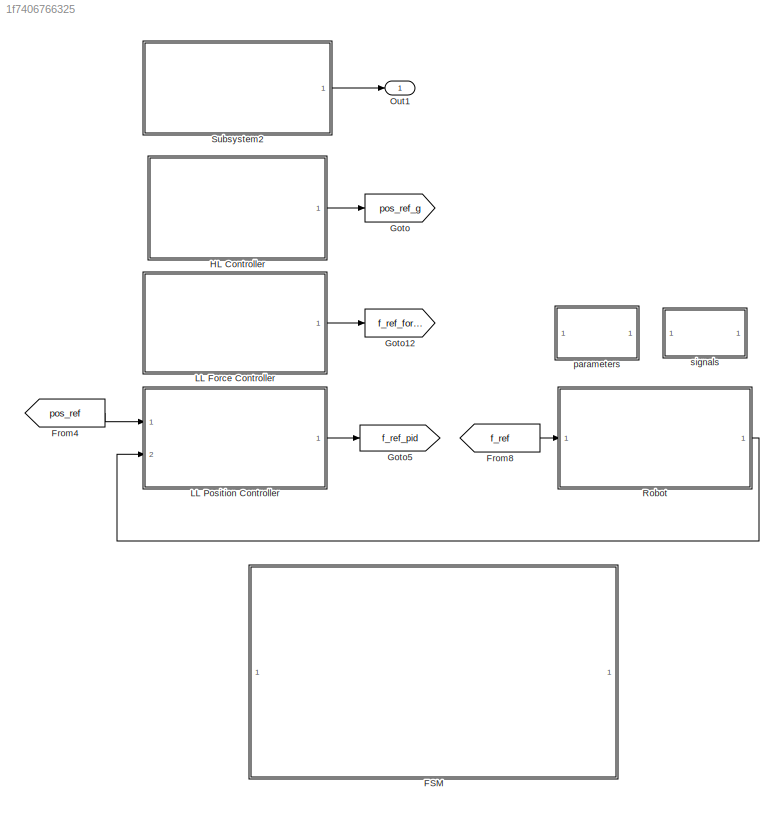
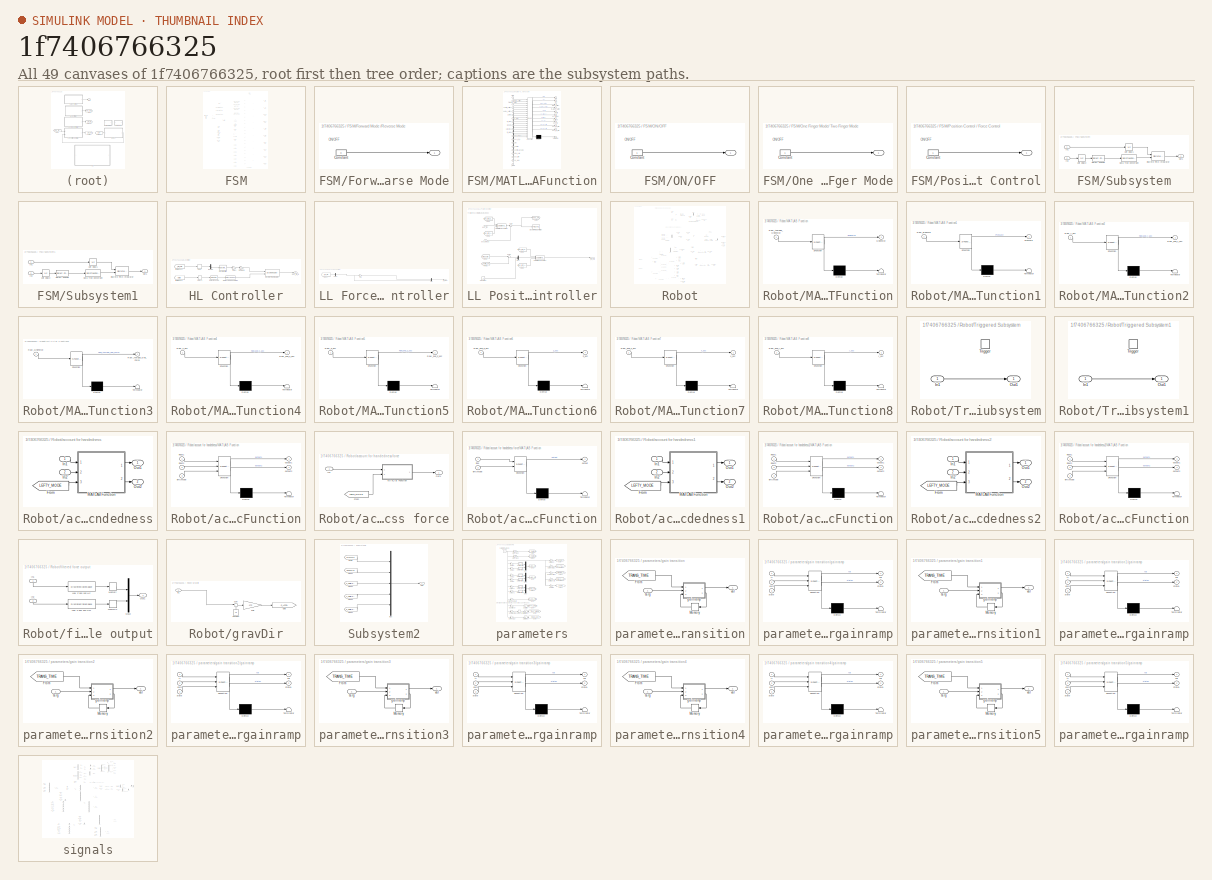
[diagram: thumbnail index - all 49 canvases of the model, root first then tree order]
MODEL slx_1f7406766325
KIND model
CONFIG AbsTol = auto
CONFIG FixedStep = .001
CONFIG InitFcn = settupFilter;\nxpctargetping
CONFIG MaxStep = auto
CONFIG MinStep = auto
CONFIG PreLoadFcn = settupFilter;
CONFIG RelTol = 1e-3
CONFIG SampleTimeConstraint = Unconstrained
CONFIG Solver = FixedStepDiscrete
CONFIG SolverMode = Auto
CONFIG SolverName = FixedStepDiscrete
CONFIG StartTime = 0.0
CONFIG StopTime = inf
BLOCK [SubSystem] FSM
  Ports = []
  RequestExecContextInheritance = off
  Variant = off
BLOCK [Constant] FSM/Constant1
  Value = 0.1
BLOCK [Constant] FSM/Constant10
  Value = .3
BLOCK [Constant] FSM/Constant2
  Value = -1
BLOCK [Constant] FSM/Constant3
  Value = -0.1
BLOCK [Constant] FSM/Constant4
  Value = .2
BLOCK [Constant] FSM/Constant5
  Value = -.3
BLOCK [Constant] FSM/Constant6
  Value = 0
BLOCK [Constant] FSM/Constant7
BLOCK [Constant] FSM/Constant8
  Value = 0
BLOCK [DataTypeConversion] FSM/Data Type Conversion
  RndMeth = Floor
  SaturateOnIntegerOverflow = off
BLOCK [DataTypeConversion] FSM/Data Type Conversion1
  RndMeth = Floor
  SaturateOnIntegerOverflow = off
BLOCK [DataTypeConversion] FSM/Data Type Conversion2
  RndMeth = Floor
  SaturateOnIntegerOverflow = off
BLOCK [DataTypeConversion] FSM/Data Type Conversion3
  RndMeth = Floor
  SaturateOnIntegerOverflow = off
BLOCK [SubSystem] FSM/Forward Mode //Reverse Mode
  InitFcn = set_param([gcb,'/Constant'],'value','0');                    \nset_param(gcb,'BackgroundColor',sprintf('[%f,%f,%f]',1,.5,0));\n                                                             \nset_param(gcb,'MaskDisplay', ['disp(''Forward Mode'')']);
  OpenFcn = currentState = str2num(get_param([gcb,'/Constant'],'value'));                                                                                                             \nif currentState==1;                                                                       set_param([gcb,'/Constant'],'value','0');                                       \nset_param(gcb,'BackgroundColor',sprintf('[%f,%f,%f]',1,.5,...<+637ch>
  Ports = [0, 1]
  RequestExecContextInheritance = off
  StartFcn = set_param([gcb,'/Constant'],'value','0');                    \nset_param(gcb,'BackgroundColor',sprintf('[%f,%f,%f]',1,.5,0));\n                                                             \nset_param(gcb,'MaskDisplay', ['disp(''Forward Mode'')']);
  StopFcn = set_param([gcb,'/Constant'],'value','0');                    \nset_param(gcb,'BackgroundColor',sprintf('[%f,%f,%f]',1,0,0));\nset_param(gcb,'MaskDisplay', ['disp(''Not Running'')']);
  Variant = off
BLOCK [Outport] FSM/Forward Mode //Reverse Mode/ 
  IconDisplay = Port number
BLOCK [Constant] FSM/Forward Mode //Reverse Mode/Constant
  OutDataTypeStr = boolean
  Value = 0
BLOCK [From] FSM/From
  GotoTag = state
  TagVisibility = global
BLOCK [From] FSM/From1
  GotoTag = pos_ref_g
  TagVisibility = global
BLOCK [From] FSM/From10
  GotoTag = f_ref_force
  TagVisibility = global
BLOCK [From] FSM/From2
  GotoTag = f_ref_pid
  TagVisibility = global
BLOCK [From] FSM/From3
  GotoTag = ramp_switch
  TagVisibility = global
BLOCK [From] FSM/From5
  GotoTag = fp_ramp_switch
  TagVisibility = global
BLOCK [From] FSM/From6
  GotoTag = state
  TagVisibility = global
BLOCK [From] FSM/From7
  GotoTag = pos_meas
  TagVisibility = global
BLOCK [Goto] FSM/Goto1
  GotoTag = ramp_switch
  TagVisibility = global
BLOCK [Goto] FSM/Goto10
  GotoTag = t_ramp
  TagVisibility = global
BLOCK [Goto] FSM/Goto11
  GotoTag = fp_ramp_switch
  TagVisibility = global
BLOCK [Goto] FSM/Goto13
  GotoTag = p_trigger
  TagVisibility = global
BLOCK [Goto] FSM/Goto2
  GotoTag = state
  TagVisibility = global
BLOCK [Goto] FSM/Goto3
  GotoTag = f_ref
  TagVisibility = global
BLOCK [Goto] FSM/Goto4
  GotoTag = f_ref_lim
  TagVisibility = global
BLOCK [Goto] FSM/Goto6
  GotoTag = enc_trigger
  TagVisibility = global
BLOCK [Goto] FSM/Goto7
  GotoTag = pos_ref
  TagVisibility = global
BLOCK [Goto] FSM/Goto8
  GotoTag = pos_ref_Ulim
  TagVisibility = global
BLOCK [Goto] FSM/Goto9
  GotoTag = pos_ref_Llim
  TagVisibility = global
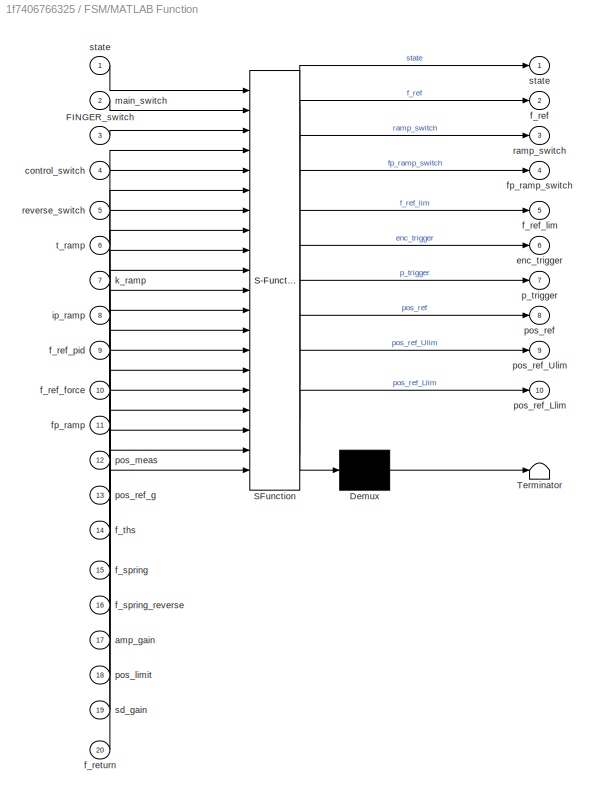
BLOCK [SubSystem] FSM/MATLAB Function
  ErrorFcn = Stateflow.Translate.translate
  MinAlgLoopOccurrences = on
  PermitHierarchicalResolution = ExplicitOnly
  Ports = [20, 10]
  RequestExecContextInheritance = off
  SFBlockType = MATLAB Function
  TreatAsAtomicUnit = on
  Variant = off
BLOCK [Demux] FSM/MATLAB Function/ Demux 
  Outputs = 1
  Ports = [1, 1]
BLOCK [S-Function] FSM/MATLAB Function/ SFunction 
  EnableBusSupport = on
  FunctionName = sf_sfun
  PortCounts = [20 11]
  Ports = [20, 11]
  SFunctionDeploymentMode = off
  Tag = Stateflow S-Function FingerStrokeAssistance 2
BLOCK [Terminator] FSM/MATLAB Function/ Terminator 
BLOCK [Inport] FSM/MATLAB Function/FINGER_switch
  IconDisplay = Port number
  Port = 3
BLOCK [Inport] FSM/MATLAB Function/amp_gain
  IconDisplay = Port number
  Port = 17
BLOCK [Inport] FSM/MATLAB Function/control_switch
  IconDisplay = Port number
  Port = 4
BLOCK [Outport] FSM/MATLAB Function/enc_trigger
  IconDisplay = Port number
  Port = 6
BLOCK [Outport] FSM/MATLAB Function/f_ref
  IconDisplay = Port number
  Port = 2
BLOCK [Inport] FSM/MATLAB Function/f_ref_force
  IconDisplay = Port number
  Port = 10
BLOCK [Outport] FSM/MATLAB Function/f_ref_lim
  IconDisplay = Port number
  Port = 5
BLOCK [Inport] FSM/MATLAB Function/f_ref_pid
  IconDisplay = Port number
  Port = 9
BLOCK [Inport] FSM/MATLAB Function/f_return
  IconDisplay = Port number
  Port = 20
BLOCK [Inport] FSM/MATLAB Function/f_spring
  IconDisplay = Port number
  Port = 15
BLOCK [Inport] FSM/MATLAB Function/f_spring_reverse
  IconDisplay = Port number
  Port = 16
BLOCK [Inport] FSM/MATLAB Function/f_ths
  IconDisplay = Port number
  Port = 14
BLOCK [Inport] FSM/MATLAB Function/fp_ramp
  IconDisplay = Port number
  Port = 11
BLOCK [Outport] FSM/MATLAB Function/fp_ramp_switch
  IconDisplay = Port number
  Port = 4
BLOCK [Inport] FSM/MATLAB Function/ip_ramp
  IconDisplay = Port number
  Port = 8
BLOCK [Inport] FSM/MATLAB Function/k_ramp
  IconDisplay = Port number
  Port = 7
BLOCK [Inport] FSM/MATLAB Function/main_switch
  IconDisplay = Port number
  Port = 2
BLOCK [Outport] FSM/MATLAB Function/p_trigger
  IconDisplay = Port number
  Port = 7
BLOCK [Inport] FSM/MATLAB Function/pos_limit
  IconDisplay = Port number
  Port = 18
BLOCK [Inport] FSM/MATLAB Function/pos_meas
  IconDisplay = Port number
  Port = 12
BLOCK [Outport] FSM/MATLAB Function/pos_ref
  IconDisplay = Port number
  Port = 8
BLOCK [Outport] FSM/MATLAB Function/pos_ref_Llim
  IconDisplay = Port number
  Port = 10
BLOCK [Outport] FSM/MATLAB Function/pos_ref_Ulim
  IconDisplay = Port number
  Port = 9
BLOCK [Inport] FSM/MATLAB Function/pos_ref_g
  IconDisplay = Port number
  Port = 13
BLOCK [Outport] FSM/MATLAB Function/ramp_switch
  IconDisplay = Port number
  Port = 3
BLOCK [Inport] FSM/MATLAB Function/reverse_switch
  IconDisplay = Port number
  Port = 5
BLOCK [Inport] FSM/MATLAB Function/sd_gain
  IconDisplay = Port number
  Port = 19
BLOCK [Outport] FSM/MATLAB Function/state
  IconDisplay = Port number
BLOCK [Inport] FSM/MATLAB Function/state 
  IconDisplay = Port number
BLOCK [Inport] FSM/MATLAB Function/t_ramp
  IconDisplay = Port number
  Port = 6
BLOCK [SubSystem] FSM/ON//OFF
  InitFcn = set_param([gcb,'/Constant'],'value','0');                    \nset_param(gcb,'BackgroundColor',sprintf('[%f,%f,%f]',1,0,0));\n                                                             \nset_param(gcb,'MaskDisplay', ['disp(''Not Running'')']);
  OpenFcn = currentState = str2num(get_param([gcb,'/Constant'],'value'));                                                                                                             \nif currentState==1;                                                                       set_param([gcb,'/Constant'],'value','0');                                       \nset_param(gcb,'BackgroundColor',sprintf('[%f,%f,%f]',1,0,0...<+629ch>
  Ports = [0, 1]
  RequestExecContextInheritance = off
  StartFcn = set_param([gcb,'/Constant'],'value','0');                    \nset_param(gcb,'BackgroundColor',sprintf('[%f,%f,%f]',1,0,0));\n                                                             \nset_param(gcb,'MaskDisplay', ['disp(''Not Running'')']);
  StopFcn = set_param([gcb,'/Constant'],'value','0');                    \nset_param(gcb,'BackgroundColor',sprintf('[%f,%f,%f]',1,0,0));\nset_param(gcb,'MaskDisplay', ['disp(''Not Running'')']);
  Variant = off
BLOCK [Outport] FSM/ON//OFF/ 
  IconDisplay = Port number
BLOCK [Constant] FSM/ON//OFF/Constant
  OutDataTypeStr = boolean
BLOCK [SubSystem] FSM/One Finger Mode// Two Finger Mode
  InitFcn = set_param([gcb,'/Constant'],'value','0');                    \nset_param(gcb,'BackgroundColor',sprintf('[%f,%f,%f]',0,1,1));\n                                                             \nset_param(gcb,'MaskDisplay', ['disp(''One Finger Mode'')']);
  OpenFcn = currentState = str2num(get_param([gcb,'/Constant'],'value'));                                                                                                             \nif currentState==1;                                                                       set_param([gcb,'/Constant'],'value','0');                                       \nset_param(gcb,'BackgroundColor',sprintf('[%f,%f,%f]',0,1,1...<+641ch>
  Ports = [0, 1]
  RequestExecContextInheritance = off
  StartFcn = set_param([gcb,'/Constant'],'value','0');                    \nset_param(gcb,'BackgroundColor',sprintf('[%f,%f,%f]',0,1,1));\n                                                             \nset_param(gcb,'MaskDisplay', ['disp(''One Finger Mode'')']);
  StopFcn = set_param([gcb,'/Constant'],'value','0');                    \nset_param(gcb,'BackgroundColor',sprintf('[%f,%f,%f]',1,0,1));\nset_param(gcb,'MaskDisplay', ['disp(''Not Running'')']);
  Variant = off
BLOCK [Outport] FSM/One Finger Mode// Two Finger Mode/ 
  IconDisplay = Port number
BLOCK [Constant] FSM/One Finger Mode// Two Finger Mode/Constant
  OutDataTypeStr = boolean
BLOCK [SubSystem] FSM/Position Control // Force Control
  InitFcn = set_param([gcb,'/Constant'],'value','0');                    \nset_param(gcb,'BackgroundColor',sprintf('[%f,%f,%f]',1,1,0));\n                                                             \nset_param(gcb,'MaskDisplay', ['disp(''Position Control'')']);
  OpenFcn = currentState = str2num(get_param([gcb,'/Constant'],'value'));                                                                                                             \nif currentState==1;                                                                       set_param([gcb,'/Constant'],'value','0');                                       \nset_param(gcb,'BackgroundColor',sprintf('[%f,%f,%f]',1,1,0...<+642ch>
  Ports = [0, 1]
  RequestExecContextInheritance = off
  StartFcn = set_param([gcb,'/Constant'],'value','0');                    \nset_param(gcb,'BackgroundColor',sprintf('[%f,%f,%f]',1,1,0));\n                                                             \nset_param(gcb,'MaskDisplay', ['disp(''Position Control'')']);
  StopFcn = set_param([gcb,'/Constant'],'value','0');                    \nset_param(gcb,'BackgroundColor',sprintf('[%f,%f,%f]',1,0,0));\nset_param(gcb,'MaskDisplay', ['disp(''Not Running'')']);
  Variant = off
BLOCK [Outport] FSM/Position Control // Force Control/ 
  IconDisplay = Port number
BLOCK [Constant] FSM/Position Control // Force Control/Constant
  OutDataTypeStr = boolean
BLOCK [SubSystem] FSM/Subsystem
  Ports = [2, 1]
  RequestExecContextInheritance = off
  Variant = off
BLOCK [DataTypeConversion] FSM/Subsystem/Data Type Conversion
  RndMeth = Floor
  SaturateOnIntegerOverflow = off
BLOCK [Reference] FSM/Subsystem/Detect Change  REF=simulink/Logic and Bit
Operations/Detect
Change
  Ports = [1, 1]
  SourceBlock = simulink/Logic and Bit\nOperations/Detect\nChange
  SourceType = Detect Change
BLOCK [DiscreteIntegrator] FSM/Subsystem/Discrete-Time Integrator
  ExternalReset = either
  ICPrevOutput = DiscIntNeverNeededParam
  ICPrevScaledInput = DiscIntNeverNeededParam
  InitialConditionSetting = State (most efficient)
  LowerSaturationLimit = 0
  Ports = [2, 1]
  SampleTime = -1
  UpperSaturationLimit = 0.9
BLOCK [Inport] FSM/Subsystem/In1
  IconDisplay = Port number
BLOCK [Inport] FSM/Subsystem/In2
  IconDisplay = Port number
  Port = 2
BLOCK [Outport] FSM/Subsystem/Out1
  IconDisplay = Port number
BLOCK [UnitDelay] FSM/Subsystem/Unit Delay1
  InputProcessing = Elements as channels (sample based)
  SampleTime = -1
BLOCK [UnitDelay] FSM/Subsystem/Unit Delay2
  InputProcessing = Elements as channels (sample based)
  SampleTime = -1
BLOCK [SubSystem] FSM/Subsystem1
  Ports = [2, 1]
  RequestExecContextInheritance = off
  Variant = off
BLOCK [DataTypeConversion] FSM/Subsystem1/Data Type Conversion
  RndMeth = Floor
  SaturateOnIntegerOverflow = off
BLOCK [Reference] FSM/Subsystem1/Detect Change  REF=simulink/Logic and Bit
Operations/Detect
Change
  Ports = [1, 1]
  SourceBlock = simulink/Logic and Bit\nOperations/Detect\nChange
  SourceType = Detect Change
BLOCK [DiscreteIntegrator] FSM/Subsystem1/Discrete-Time Integrator
  ExternalReset = either
  ICPrevOutput = DiscIntNeverNeededParam
  ICPrevScaledInput = DiscIntNeverNeededParam
  InitialConditionSetting = State (most efficient)
  LowerSaturationLimit = 0
  Ports = [2, 1]
  SampleTime = -1
  UpperSaturationLimit = 0.9
BLOCK [Inport] FSM/Subsystem1/In1
  IconDisplay = Port number
BLOCK [Inport] FSM/Subsystem1/In2
  IconDisplay = Port number
  Port = 2
BLOCK [Outport] FSM/Subsystem1/Out1
  IconDisplay = Port number
BLOCK [UnitDelay] FSM/Subsystem1/Unit Delay1
  InputProcessing = Elements as channels (sample based)
  SampleTime = -1
BLOCK [UnitDelay] FSM/Subsystem1/Unit Delay2
  InputProcessing = Elements as channels (sample based)
  SampleTime = -1
BLOCK [UnitDelay] FSM/Unit Delay
  InitialCondition = 1
  InputProcessing = Elements as channels (sample based)
  SampleTime = -1
BLOCK [UnitDelay] FSM/Unit Delay1
  InputProcessing = Elements as channels (sample based)
  SampleTime = -1
BLOCK [UnitDelay] FSM/Unit Delay2
  InputProcessing = Elements as channels (sample based)
  SampleTime = -1
BLOCK [UnitDelay] FSM/Unit Delay3
  InputProcessing = Elements as channels (sample based)
  SampleTime = -1
BLOCK [From] From4
  GotoTag = pos_ref
  TagVisibility = global
BLOCK [From] From8
  GotoTag = f_ref
  TagVisibility = global
BLOCK [Goto] Goto
  GotoTag = pos_ref_g
  TagVisibility = global
BLOCK [Goto] Goto12
  GotoTag = f_ref_force
  TagVisibility = global
BLOCK [Goto] Goto5
  GotoTag = f_ref_pid
  TagVisibility = global
BLOCK [SubSystem] HL Controller
  Ports = [0, 1]
  RequestExecContextInheritance = off
  Variant = off
BLOCK [Gain] HL Controller/Damping
  Gain = 1/1
  OutDataTypeStr = Inherit: Inherit via internal rule
  ParamDataTypeStr = Inherit: Inherit via internal rule
  SaturateOnIntegerOverflow = off
BLOCK [DataTypeConversion] HL Controller/Data Type Conversion
  RndMeth = Floor
  SaturateOnIntegerOverflow = off
BLOCK [Delay] HL Controller/Delay
  DelayLength = 1
  InitialCondition = 0
  InputPortMap = u0
  Ports = [1, 1]
BLOCK [Delay] HL Controller/Delay1
  DelayLength = 1
  InitialCondition = 0
  InputPortMap = u0
  Ports = [1, 1]
BLOCK [Demux] HL Controller/Demux
  DisplayOption = bar
  Outputs = 2
  Ports = [1, 2]
BLOCK [Reference] HL Controller/Detect Change  REF=simulink/Logic and Bit
Operations/Detect
Change
  Ports = [1, 1]
  SourceBlock = simulink/Logic and Bit\nOperations/Detect\nChange
  SourceType = Detect Change
BLOCK [DiscreteFilter] HL Controller/Discrete Filter1
  Denominator = [a_hp]
  InputPortMap = u0
  Numerator = [b_hp]
  Ports = [1, 1]
BLOCK [DiscreteIntegrator] HL Controller/Discrete-Time Integrator
  ExternalReset = either
  ICPrevOutput = DiscIntNeverNeededParam
  ICPrevScaledInput = DiscIntNeverNeededParam
  InitialConditionSetting = State (most efficient)
  LimitOutput = on
  LowerSaturationLimit = 0
  Ports = [2, 1]
  SampleTime = -1
  UpperSaturationLimit = 1
BLOCK [Gain] HL Controller/Gain1
  Gain = -1
  OutDataTypeStr = Inherit: Inherit via internal rule
  ParamDataTypeStr = Inherit: Inherit via internal rule
  SaturateOnIntegerOverflow = off
BLOCK [From] HL Controller/from forces1
  GotoTag = state
  TagVisibility = global
BLOCK [From] HL Controller/from forces2
  GotoTag = f_ref_pid
  TagVisibility = global
BLOCK [Outport] HL Controller/pos_ref_g
  IconDisplay = Port number
BLOCK [SubSystem] LL Force Controller
  Ports = [0, 1]
  RequestExecContextInheritance = off
  Variant = off
BLOCK [Outport] LL Force Controller/ f_ref_force
  IconDisplay = Port number
BLOCK [Demux] LL Force Controller/Demux
  DisplayOption = bar
  Outputs = 2
  Ports = [1, 2]
BLOCK [From] LL Force Controller/From11
  GotoTag = f_ref_pid
  TagVisibility = global
BLOCK [Gain] LL Force Controller/Gain
  Gain = -1
  OutDataTypeStr = Inherit: Inherit via internal rule
  ParamDataTypeStr = Inherit: Inherit via internal rule
  SaturateOnIntegerOverflow = off
BLOCK [Mux] LL Force Controller/Mux
  DisplayOption = bar
  Inputs = 2
  Ports = [2, 1]
BLOCK [SubSystem] LL Position Controller
  Ports = [2, 1]
  RequestExecContextInheritance = off
  Variant = off
BLOCK [Outport] LL Position Controller/ f_ref_pid
  IconDisplay = Port number
BLOCK [Constant] LL Position Controller/Constant
  Value = 0
BLOCK [Reference] LL Position Controller/Discrete PID Controller  REF=simulink/Continuous/PID Controller
  Ports = [1, 1]
  SourceBlock = simulink/Continuous/PID Controller
  SourceType = PID 1dof
BLOCK [From] LL Position Controller/From1
  GotoTag = p_norm_zero
  TagVisibility = global
BLOCK [From] LL Position Controller/From2
  GotoTag = pressure
  TagVisibility = global
BLOCK [From] LL Position Controller/From3
  GotoTag = pos_ref_Ulim
  TagVisibility = global
BLOCK [From] LL Position Controller/From4
  GotoTag = pos_ref_Llim
  TagVisibility = global
BLOCK [From] LL Position Controller/From5
  GotoTag = pos_ref_Ulim
  TagVisibility = global
BLOCK [From] LL Position Controller/From6
  GotoTag = pos_ref_Llim
  TagVisibility = global
BLOCK [Goto] LL Position Controller/Goto2
  GotoTag = pos_err
  TagVisibility = global
BLOCK [Mux] LL Position Controller/Mux
  DisplayOption = bar
  Inputs = 2
  Ports = [2, 1]
BLOCK [Reference] LL Position Controller/Saturation Dynamic1  REF=simulink/Discontinuities/Saturation
Dynamic
  Ports = [3, 1]
  SourceBlock = simulink/Discontinuities/Saturation\nDynamic
  SourceType = Saturation Dynamic
BLOCK [Reference] LL Position Controller/Saturation Dynamic2  REF=simulink/Discontinuities/Saturation
Dynamic
  Ports = [3, 1]
  SourceBlock = simulink/Discontinuities/Saturation\nDynamic
  SourceType = Saturation Dynamic
BLOCK [Sum] LL Position Controller/Sum
  IconShape = round
  InputSameDT = off
  Inputs = |+-
  OutDataTypeStr = Inherit: Inherit via internal rule
  Ports = [2, 1]
  SaturateOnIntegerOverflow = off
BLOCK [Sum] LL Position Controller/Sum1
  IconShape = round
  InputSameDT = off
  Inputs = |+-
  OutDataTypeStr = Inherit: Inherit via internal rule
  Ports = [2, 1]
  SaturateOnIntegerOverflow = off
BLOCK [Inport] LL Position Controller/pos_meas
  IconDisplay = Port number
  Port = 2
BLOCK [Inport] LL Position Controller/pos_ref
  IconDisplay = Port number
BLOCK [Outport] Out1
  IconDisplay = Port number
BLOCK [SubSystem] Robot
  Ports = [1, 1]
  RequestExecContextInheritance = off
  Variant = off
BLOCK [Demux] Robot/Demux
  DisplayOption = bar
  Outputs = 2
  Ports = [1, 2]
BLOCK [Demux] Robot/Demux1
  DisplayOption = bar
  Outputs = 2
  Ports = [1, 2]
BLOCK [Reference] Robot/Discrete Derivative  REF=simulink/Discrete/Discrete Derivative
  Ports = [1, 1]
  SourceBlock = simulink/Discrete/Discrete Derivative
  SourceType = Discrete Derivative
BLOCK [DiscreteFilter] Robot/Discrete Filter1
  Denominator = [a_lp]
  InputPortMap = u0
  Numerator = [b_lp]
  Ports = [1, 1]
BLOCK [From] Robot/From
  GotoTag = enc_norm
  TagVisibility = global
BLOCK [From] Robot/From1
  GotoTag = enc_trigger
  TagVisibility = global
BLOCK [From] Robot/From2
  GotoTag = enc_norm_zero
  TagVisibility = global
BLOCK [From] Robot/From3
  GotoTag = p_trigger
  TagVisibility = global
BLOCK [From] Robot/From4
  GotoTag = f_ref_lim
  TagVisibility = global
BLOCK [From] Robot/From5
  GotoTag = f_ref_lim
  TagVisibility = global
BLOCK [From] Robot/From6
  GotoTag = p_norm
  TagVisibility = global
BLOCK [Gain] Robot/Gain
  Gain = 1/4500.0
  OutDataTypeStr = Inherit: Inherit via internal rule
  ParamDataTypeStr = Inherit: Inherit via internal rule
  SaturateOnIntegerOverflow = off
BLOCK [Gain] Robot/Gain1
  Gain = -1
  OutDataTypeStr = Inherit: Inherit via internal rule
  ParamDataTypeStr = Inherit: Inherit via internal rule
  SaturateOnIntegerOverflow = off
BLOCK [Goto] Robot/Goto
  Commented = on
  GotoTag = LOADCELLS
  TagVisibility = global
BLOCK [Goto] Robot/Goto1
  GotoTag = AVE_ACT_FORCE
  TagVisibility = global
BLOCK [Goto] Robot/Goto10
  GotoTag = pressure
  TagVisibility = global
BLOCK [Goto] Robot/Goto11
  GotoTag = p_norm
  TagVisibility = global
BLOCK [Goto] Robot/Goto12
  GotoTag = p_norm_zero
  TagVisibility = global
BLOCK [Goto] Robot/Goto13
  GotoTag = Raw_GripForce
  TagVisibility = global
BLOCK [Goto] Robot/Goto14
  GotoTag = Raw_X
  TagVisibility = global
BLOCK [Goto] Robot/Goto15
  GotoTag = Raw_Y
  TagVisibility = global
BLOCK [Goto] Robot/Goto16
  GotoTag = Raw_Z
  TagVisibility = global
BLOCK [Goto] Robot/Goto17
  GotoTag = GripForce
  TagVisibility = global
BLOCK [Goto] Robot/Goto18
  GotoTag = Z_Calibrated
  TagVisibility = global
BLOCK [Goto] Robot/Goto19
  GotoTag = X_Calibrated
  TagVisibility = global
BLOCK [Goto] Robot/Goto2
  GotoTag = pos_meas
  TagVisibility = global
BLOCK [Goto] Robot/Goto20
  GotoTag = Y_Calibrated
  TagVisibility = global
BLOCK [Goto] Robot/Goto3
  GotoTag = enc_raw
  TagVisibility = global
BLOCK [Goto] Robot/Goto4
  GotoTag = enc_norm
  TagVisibility = global
BLOCK [Goto] Robot/Goto5
  GotoTag = vel_meas_1
  TagVisibility = global
BLOCK [Goto] Robot/Goto6
  GotoTag = vel_meas_2
  TagVisibility = global
BLOCK [Goto] Robot/Goto7
  GotoTag = enc_norm_zero
  TagVisibility = global
BLOCK [Goto] Robot/Goto8
  GotoTag = f_ref_limited
  TagVisibility = global
BLOCK [Goto] Robot/Goto9
  GotoTag = vel_meas
  TagVisibility = global
BLOCK [SubSystem] Robot/MATLAB Function
  ErrorFcn = Stateflow.Translate.translate
  PermitHierarchicalResolution = ExplicitOnly
  Ports = [1, 1]
  RequestExecContextInheritance = off
  SFBlockType = MATLAB Function
  TreatAsAtomicUnit = on
  Variant = off
BLOCK [Demux] Robot/MATLAB Function/ Demux 
  Outputs = 1
  Ports = [1, 1]
BLOCK [S-Function] Robot/MATLAB Function/ SFunction 
  EnableBusSupport = on
  FunctionName = sf_sfun
  PortCounts = [1 2]
  Ports = [1, 2]
  SFunctionDeploymentMode = off
  Tag = Stateflow S-Function FingerStrokeAssistance 1
BLOCK [Terminator] Robot/MATLAB Function/ Terminator 
BLOCK [Outport] Robot/MATLAB Function/GripForce
  IconDisplay = Port number
BLOCK [Inport] Robot/MATLAB Function/Raw_Average_GripForce
  IconDisplay = Port number
BLOCK [SubSystem] Robot/MATLAB Function1
  ErrorFcn = Stateflow.Translate.translate
  PermitHierarchicalResolution = ExplicitOnly
  Ports = [1, 1]
  RequestExecContextInheritance = off
  SFBlockType = MATLAB Function
  TreatAsAtomicUnit = on
  Variant = off
BLOCK [Demux] Robot/MATLAB Function1/ Demux 
  Outputs = 1
  Ports = [1, 1]
BLOCK [S-Function] Robot/MATLAB Function1/ SFunction 
  EnableBusSupport = on
  FunctionName = sf_sfun
  PortCounts = [1 2]
  Ports = [1, 2]
  SFunctionDeploymentMode = off
  Tag = Stateflow S-Function FingerStrokeAssistance 3
BLOCK [Terminator] Robot/MATLAB Function1/ Terminator 
BLOCK [Outport] Robot/MATLAB Function1/Pressure
  IconDisplay = Port number
BLOCK [Inport] Robot/MATLAB Function1/Raw_Pressure
  IconDisplay = Port number
BLOCK [SubSystem] Robot/MATLAB Function2
  ErrorFcn = Stateflow.Translate.translate
  PermitHierarchicalResolution = ExplicitOnly
  Ports = [1, 1]
  RequestExecContextInheritance = off
  SFBlockType = MATLAB Function
  TreatAsAtomicUnit = on
  Variant = off
BLOCK [Demux] Robot/MATLAB Function2/ Demux 
  Outputs = 1
  Ports = [1, 1]
BLOCK [S-Function] Robot/MATLAB Function2/ SFunction 
  EnableBusSupport = on
  FunctionName = sf_sfun
  PortCounts = [1 2]
  Ports = [1, 2]
  SFunctionDeploymentMode = off
  Tag = Stateflow S-Function FingerStrokeAssistance 4
BLOCK [Terminator] Robot/MATLAB Function2/ Terminator 
BLOCK [Outport] Robot/MATLAB Function2/Raw_avg_y_acc
  IconDisplay = Port number
BLOCK [Inport] Robot/MATLAB Function2/Raw_y_acc
  IconDisplay = Port number
BLOCK [SubSystem] Robot/MATLAB Function3
  ErrorFcn = Stateflow.Translate.translate
  PermitHierarchicalResolution = ExplicitOnly
  Ports = [1, 1]
  RequestExecContextInheritance = off
  SFBlockType = MATLAB Function
  TreatAsAtomicUnit = on
  Variant = off
BLOCK [Demux] Robot/MATLAB Function3/ Demux 
  Outputs = 1
  Ports = [1, 1]
BLOCK [S-Function] Robot/MATLAB Function3/ SFunction 
  EnableBusSupport = on
  FunctionName = sf_sfun
  PortCounts = [1 2]
  Ports = [1, 2]
  SFunctionDeploymentMode = off
  Tag = Stateflow S-Function FingerStrokeAssistance 5
BLOCK [Terminator] Robot/MATLAB Function3/ Terminator 
BLOCK [Outport] Robot/MATLAB Function3/Raw_Average_Grip_Force
  IconDisplay = Port number
BLOCK [Inport] Robot/MATLAB Function3/Raw_GripForce
  IconDisplay = Port number
BLOCK [SubSystem] Robot/MATLAB Function4
  ErrorFcn = Stateflow.Translate.translate
  PermitHierarchicalResolution = ExplicitOnly
  Ports = [1, 1]
  RequestExecContextInheritance = off
  SFBlockType = MATLAB Function
  TreatAsAtomicUnit = on
  Variant = off
BLOCK [Demux] Robot/MATLAB Function4/ Demux 
  Outputs = 1
  Ports = [1, 1]
BLOCK [S-Function] Robot/MATLAB Function4/ SFunction 
  EnableBusSupport = on
  FunctionName = sf_sfun
  PortCounts = [1 2]
  Ports = [1, 2]
  SFunctionDeploymentMode = off
  Tag = Stateflow S-Function FingerStrokeAssistance 6
BLOCK [Terminator] Robot/MATLAB Function4/ Terminator 
BLOCK [Outport] Robot/MATLAB Function4/Raw_avg_x_acc
  IconDisplay = Port number
BLOCK [Inport] Robot/MATLAB Function4/Raw_x_acc
  IconDisplay = Port number
BLOCK [SubSystem] Robot/MATLAB Function5
  ErrorFcn = Stateflow.Translate.translate
  PermitHierarchicalResolution = ExplicitOnly
  Ports = [1, 1]
  RequestExecContextInheritance = off
  SFBlockType = MATLAB Function
  TreatAsAtomicUnit = on
  Variant = off
BLOCK [Demux] Robot/MATLAB Function5/ Demux 
  Outputs = 1
  Ports = [1, 1]
BLOCK [S-Function] Robot/MATLAB Function5/ SFunction 
  EnableBusSupport = on
  FunctionName = sf_sfun
  PortCounts = [1 2]
  Ports = [1, 2]
  SFunctionDeploymentMode = off
  Tag = Stateflow S-Function FingerStrokeAssistance 7
BLOCK [Terminator] Robot/MATLAB Function5/ Terminator 
BLOCK [Inport] Robot/MATLAB Function5/Raw_Z_acc
  IconDisplay = Port number
BLOCK [Outport] Robot/MATLAB Function5/Raw_avg_Z_acc
  IconDisplay = Port number
BLOCK [SubSystem] Robot/MATLAB Function6
  ErrorFcn = Stateflow.Translate.translate
  PermitHierarchicalResolution = ExplicitOnly
  Ports = [1, 1]
  RequestExecContextInheritance = off
  SFBlockType = MATLAB Function
  TreatAsAtomicUnit = on
  Variant = off
BLOCK [Demux] Robot/MATLAB Function6/ Demux 
  Outputs = 1
  Ports = [1, 1]
BLOCK [S-Function] Robot/MATLAB Function6/ SFunction 
  EnableBusSupport = on
  FunctionName = sf_sfun
  PortCounts = [1 2]
  Ports = [1, 2]
  SFunctionDeploymentMode = off
  Tag = Stateflow S-Function FingerStrokeAssistance 8
BLOCK [Terminator] Robot/MATLAB Function6/ Terminator 
BLOCK [Inport] Robot/MATLAB Function6/Raw_avg_Z_acc
  IconDisplay = Port number
BLOCK [Outport] Robot/MATLAB Function6/Z_acc
  IconDisplay = Port number
BLOCK [SubSystem] Robot/MATLAB Function7
  ErrorFcn = Stateflow.Translate.translate
  PermitHierarchicalResolution = ExplicitOnly
  Ports = [1, 1]
  RequestExecContextInheritance = off
  SFBlockType = MATLAB Function
  TreatAsAtomicUnit = on
  Variant = off
BLOCK [Demux] Robot/MATLAB Function7/ Demux 
  Outputs = 1
  Ports = [1, 1]
BLOCK [S-Function] Robot/MATLAB Function7/ SFunction 
  EnableBusSupport = on
  FunctionName = sf_sfun
  PortCounts = [1 2]
  Ports = [1, 2]
  SFunctionDeploymentMode = off
  Tag = Stateflow S-Function FingerStrokeAssistance 9
BLOCK [Terminator] Robot/MATLAB Function7/ Terminator 
BLOCK [Inport] Robot/MATLAB Function7/Raw_avg_x_acc
  IconDisplay = Port number
BLOCK [Outport] Robot/MATLAB Function7/x_acc
  IconDisplay = Port number
BLOCK [SubSystem] Robot/MATLAB Function8
  ErrorFcn = Stateflow.Translate.translate
  PermitHierarchicalResolution = ExplicitOnly
  Ports = [1, 1]
  RequestExecContextInheritance = off
  SFBlockType = MATLAB Function
  TreatAsAtomicUnit = on
  Variant = off
BLOCK [Demux] Robot/MATLAB Function8/ Demux 
  Outputs = 1
  Ports = [1, 1]
BLOCK [S-Function] Robot/MATLAB Function8/ SFunction 
  EnableBusSupport = on
  FunctionName = sf_sfun
  PortCounts = [1 2]
  Ports = [1, 2]
  SFunctionDeploymentMode = off
  Tag = Stateflow S-Function FingerStrokeAssistance 10
BLOCK [Terminator] Robot/MATLAB Function8/ Terminator 
BLOCK [Inport] Robot/MATLAB Function8/Raw_avg_y_acc
  IconDisplay = Port number
BLOCK [Outport] Robot/MATLAB Function8/y_acc
  IconDisplay = Port number
BLOCK [Mux] Robot/Mux1
  Commented = on
  DisplayOption = bar
  Inputs = 5
  Ports = [5, 1]
BLOCK [Mux] Robot/Mux2
  DisplayOption = bar
  Inputs = 2
  Ports = [2, 1]
BLOCK [Reference] Robot/PCI 6221 ENC   REF=xpcnilib/Incremental
Encoder/PCI 6221 ENC 
  Ports = [0, 1]
  SourceBlock = xpcnilib/Incremental\nEncoder/PCI 6221 ENC
  SourceType = encinpnipci6221
BLOCK [Reference] Robot/PCI 6221 ENC 1  REF=xpcnilib/Incremental
Encoder/PCI 6221 ENC 
  Ports = [0, 1]
  SourceBlock = xpcnilib/Incremental\nEncoder/PCI 6221 ENC
  SourceType = encinpnipci6221
BLOCK [Reference] Robot/PCI-6221 AD1  REF=xpcnilib/A//D/M Series/PCI-6221 AD
  Ports = [0, 12]
  SourceBlock = xpcnilib/A//D/M Series/PCI-6221 AD
  SourceType = adnipci6221
BLOCK [Reference] Robot/PCI-6221 DA  REF=xpcnilib/D//A/M Series/PCI-6221 DA
  Ports = [2]
  SourceBlock = xpcnilib/D//A/M Series/PCI-6221 DA
  SourceType = danipci6221
BLOCK [Reference] Robot/Saturation Dynamic  REF=simulink/Discontinuities/Saturation
Dynamic
  Ports = [3, 1]
  SourceBlock = simulink/Discontinuities/Saturation\nDynamic
  SourceType = Saturation Dynamic
BLOCK [Sum] Robot/Sum
  IconShape = round
  InputSameDT = off
  Inputs = |+-
  OutDataTypeStr = Inherit: Inherit via internal rule
  Ports = [2, 1]
  SaturateOnIntegerOverflow = off
BLOCK [SubSystem] Robot/Triggered Subsystem
  Ports = [1, 1, 0, 1]
  RequestExecContextInheritance = off
  TreatAsAtomicUnit = on
  Variant = off
BLOCK [Inport] Robot/Triggered Subsystem/In1
  IconDisplay = Port number
BLOCK [Outport] Robot/Triggered Subsystem/Out1
  IconDisplay = Port number
  InitialOutput = [0]
BLOCK [TriggerPort] Robot/Triggered Subsystem/Trigger
  Ports = []
  StatesWhenEnabling = held
  VariantControl = Variant
BLOCK [SubSystem] Robot/Triggered Subsystem1
  Ports = [1, 1, 0, 1]
  RequestExecContextInheritance = off
  TreatAsAtomicUnit = on
  Variant = off
BLOCK [Inport] Robot/Triggered Subsystem1/In1
  IconDisplay = Port number
BLOCK [Outport] Robot/Triggered Subsystem1/Out1
  IconDisplay = Port number
  InitialOutput = [0]
BLOCK [TriggerPort] Robot/Triggered Subsystem1/Trigger
  Ports = []
  StatesWhenEnabling = held
  VariantControl = Variant
BLOCK [UnitDelay] Robot/Unit Delay
  InputProcessing = Elements as channels (sample based)
  SampleTime = -1
BLOCK [UnitDelay] Robot/Unit Delay1
  InputProcessing = Elements as channels (sample based)
  SampleTime = -1
BLOCK [SubSystem] Robot/account for handedness
  Ports = [2, 2]
  RequestExecContextInheritance = off
  Variant = off
BLOCK [SubSystem] Robot/account for handedness force
  Commented = on
  Ports = [1, 1]
  RequestExecContextInheritance = off
  Variant = off
BLOCK [From] Robot/account for handedness force/From
  GotoTag = LEFTY_MODE
  TagVisibility = global
BLOCK [Inport] Robot/account for handedness force/In1
  IconDisplay = Port number
BLOCK [SubSystem] Robot/account for handedness force/MATLAB Function
  ErrorFcn = Stateflow.Translate.translate
  PermitHierarchicalResolution = ExplicitOnly
  Ports = [2, 1]
  RequestExecContextInheritance = off
  SFBlockType = MATLAB Function
  TreatAsAtomicUnit = on
  Variant = off
BLOCK [Demux] Robot/account for handedness force/MATLAB Function/ Demux 
  Outputs = 1
  Ports = [1, 1]
BLOCK [S-Function] Robot/account for handedness force/MATLAB Function/ SFunction 
  EnableBusSupport = on
  FunctionName = sf_sfun
  PortCounts = [2 2]
  Ports = [2, 2]
  SFunctionDeploymentMode = off
  Tag = Stateflow S-Function FingerStrokeAssistance 26
BLOCK [Terminator] Robot/account for handedness force/MATLAB Function/ Terminator 
BLOCK [Inport] Robot/account for handedness force/MATLAB Function/inp1
  IconDisplay = Port number
BLOCK [Inport] Robot/account for handedness force/MATLAB Function/leftyMode
  IconDisplay = Port number
  Port = 2
BLOCK [Outport] Robot/account for handedness force/MATLAB Function/output
  IconDisplay = Port number
BLOCK [Outport] Robot/account for handedness force/Out1
  IconDisplay = Port number
BLOCK [From] Robot/account for handedness/From
  GotoTag = LEFTY_MODE
  TagVisibility = global
BLOCK [Inport] Robot/account for handedness/In1
  IconDisplay = Port number
BLOCK [Inport] Robot/account for handedness/In2
  IconDisplay = Port number
  Port = 2
BLOCK [SubSystem] Robot/account for handedness/MATLAB Function
  ErrorFcn = Stateflow.Translate.translate
  PermitHierarchicalResolution = ExplicitOnly
  Ports = [3, 2]
  RequestExecContextInheritance = off
  SFBlockType = MATLAB Function
  TreatAsAtomicUnit = on
  Variant = off
BLOCK [Demux] Robot/account for handedness/MATLAB Function/ Demux 
  Outputs = 1
  Ports = [1, 1]
BLOCK [S-Function] Robot/account for handedness/MATLAB Function/ SFunction 
  EnableBusSupport = on
  FunctionName = sf_sfun
  PortCounts = [3 3]
  Ports = [3, 3]
  SFunctionDeploymentMode = off
  Tag = Stateflow S-Function FingerStrokeAssistance 11
BLOCK [Terminator] Robot/account for handedness/MATLAB Function/ Terminator 
BLOCK [Inport] Robot/account for handedness/MATLAB Function/input1
  IconDisplay = Port number
BLOCK [Inport] Robot/account for handedness/MATLAB Function/input2
  IconDisplay = Port number
  Port = 2
BLOCK [Inport] Robot/account for handedness/MATLAB Function/leftyMode
  IconDisplay = Port number
  Port = 3
BLOCK [Outport] Robot/account for handedness/MATLAB Function/output1
  IconDisplay = Port number
BLOCK [Outport] Robot/account for handedness/MATLAB Function/output2
  IconDisplay = Port number
  Port = 2
BLOCK [Outport] Robot/account for handedness/Out1
  IconDisplay = Port number
BLOCK [Outport] Robot/account for handedness/Out2
  IconDisplay = Port number
  Port = 2
BLOCK [SubSystem] Robot/account for handedness1
  Ports = [2, 2]
  RequestExecContextInheritance = off
  Variant = off
BLOCK [From] Robot/account for handedness1/From
  GotoTag = LEFTY_MODE
  TagVisibility = global
BLOCK [Inport] Robot/account for handedness1/In1
  IconDisplay = Port number
BLOCK [Inport] Robot/account for handedness1/In2
  IconDisplay = Port number
  Port = 2
BLOCK [SubSystem] Robot/account for handedness1/MATLAB Function
  ErrorFcn = Stateflow.Translate.translate
  PermitHierarchicalResolution = ExplicitOnly
  Ports = [3, 2]
  RequestExecContextInheritance = off
  SFBlockType = MATLAB Function
  TreatAsAtomicUnit = on
  Variant = off
BLOCK [Demux] Robot/account for handedness1/MATLAB Function/ Demux 
  Outputs = 1
  Ports = [1, 1]
BLOCK [S-Function] Robot/account for handedness1/MATLAB Function/ SFunction 
  EnableBusSupport = on
  FunctionName = sf_sfun
  PortCounts = [3 3]
  Ports = [3, 3]
  SFunctionDeploymentMode = off
  Tag = Stateflow S-Function FingerStrokeAssistance 12
BLOCK [Terminator] Robot/account for handedness1/MATLAB Function/ Terminator 
BLOCK [Inport] Robot/account for handedness1/MATLAB Function/input1
  IconDisplay = Port number
BLOCK [Inport] Robot/account for handedness1/MATLAB Function/input2
  IconDisplay = Port number
  Port = 2
BLOCK [Inport] Robot/account for handedness1/MATLAB Function/leftyMode
  IconDisplay = Port number
  Port = 3
BLOCK [Outport] Robot/account for handedness1/MATLAB Function/output1
  IconDisplay = Port number
BLOCK [Outport] Robot/account for handedness1/MATLAB Function/output2
  IconDisplay = Port number
  Port = 2
BLOCK [Outport] Robot/account for handedness1/Out1
  IconDisplay = Port number
BLOCK [Outport] Robot/account for handedness1/Out2
  IconDisplay = Port number
  Port = 2
BLOCK [SubSystem] Robot/account for handedness2
  Commented = on
  Ports = [2, 2]
  RequestExecContextInheritance = off
  Variant = off
BLOCK [From] Robot/account for handedness2/From
  GotoTag = LEFTY_MODE
  TagVisibility = global
BLOCK [Inport] Robot/account for handedness2/In1
  IconDisplay = Port number
BLOCK [Inport] Robot/account for handedness2/In2
  IconDisplay = Port number
  Port = 2
BLOCK [SubSystem] Robot/account for handedness2/MATLAB Function
  ErrorFcn = Stateflow.Translate.translate
  PermitHierarchicalResolution = ExplicitOnly
  Ports = [3, 2]
  RequestExecContextInheritance = off
  SFBlockType = MATLAB Function
  TreatAsAtomicUnit = on
  Variant = off
BLOCK [Demux] Robot/account for handedness2/MATLAB Function/ Demux 
  Outputs = 1
  Ports = [1, 1]
BLOCK [S-Function] Robot/account for handedness2/MATLAB Function/ SFunction 
  EnableBusSupport = on
  FunctionName = sf_sfun
  PortCounts = [3 3]
  Ports = [3, 3]
  SFunctionDeploymentMode = off
  Tag = Stateflow S-Function FingerStrokeAssistance 13
BLOCK [Terminator] Robot/account for handedness2/MATLAB Function/ Terminator 
BLOCK [Inport] Robot/account for handedness2/MATLAB Function/input1
  IconDisplay = Port number
BLOCK [Inport] Robot/account for handedness2/MATLAB Function/input2
  IconDisplay = Port number
  Port = 2
BLOCK [Inport] Robot/account for handedness2/MATLAB Function/leftyMode
  IconDisplay = Port number
  Port = 3
BLOCK [Outport] Robot/account for handedness2/MATLAB Function/output1
  IconDisplay = Port number
BLOCK [Outport] Robot/account for handedness2/MATLAB Function/output2
  IconDisplay = Port number
  Port = 2
BLOCK [Outport] Robot/account for handedness2/Out1
  IconDisplay = Port number
BLOCK [Outport] Robot/account for handedness2/Out2
  IconDisplay = Port number
  Port = 2
BLOCK [Inport] Robot/f_ref
  IconDisplay = Port number
BLOCK [SubSystem] Robot/filtered force output
  Ports = [2, 1]
  RequestExecContextInheritance = off
  Variant = off
BLOCK [Inport] Robot/filtered force output/In1
  IconDisplay = Port number
BLOCK [Inport] Robot/filtered force output/In2
  IconDisplay = Port number
  Port = 2
BLOCK [DiscreteStateSpace] Robot/filtered force output/Low Pass 100 Hz
  A = Alow
  B = Blow
  C = Clow
  D = Dlow
  SampleTime = -1
  X0 = x0low
BLOCK [DiscreteStateSpace] Robot/filtered force output/Low Pass 100 Hz1
  A = Alow
  B = Blow
  C = Clow
  D = Dlow
  SampleTime = -1
  X0 = x0low
BLOCK [Memory] Robot/filtered force output/Memory
BLOCK [Memory] Robot/filtered force output/Memory1
BLOCK [Mux] Robot/filtered force output/Mux2
  DisplayOption = bar
  Inputs = 2
  Ports = [2, 1]
BLOCK [Outport] Robot/filtered force output/Out1
  IconDisplay = Port number
BLOCK [SubSystem] Robot/gravDir
  Commented = on
  Ports = [1]
  RequestExecContextInheritance = off
  Variant = off
BLOCK [Constant] Robot/gravDir/Constant
  Value = 1.5
BLOCK [Goto] Robot/gravDir/Goto
  GotoTag = G_ACCEL
  TagVisibility = global
BLOCK [Inport] Robot/gravDir/In1
  IconDisplay = Port number
BLOCK [Sum] Robot/gravDir/Sum
  IconShape = round
  InputSameDT = off
  Inputs = |+-
  OutDataTypeStr = Inherit: Inherit via internal rule
  Ports = [2, 1]
  SaturateOnIntegerOverflow = off
BLOCK [Gain] Robot/gravDir/gain
  Gain = .172
  OutDataTypeStr = Inherit: Inherit via internal rule
  ParamDataTypeStr = Inherit: Inherit via internal rule
  SaturateOnIntegerOverflow = off
BLOCK [Outport] Robot/pos_meas
  IconDisplay = Port number
BLOCK [SubSystem] Subsystem2
  Ports = [0, 1]
  RequestExecContextInheritance = off
  Variant = off
BLOCK [From] Subsystem2/From11
  GotoTag = GripForce
  TagVisibility = global
BLOCK [From] Subsystem2/From12
  GotoTag = X_Calibrated
  TagVisibility = global
BLOCK [From] Subsystem2/From13
  GotoTag = Y_Calibrated
  TagVisibility = global
BLOCK [From] Subsystem2/From14
  GotoTag = Z_Calibrated
  TagVisibility = global
BLOCK [From] Subsystem2/From9
  GotoTag = pressure
  TagVisibility = global
BLOCK [Mux] Subsystem2/Mux
  DisplayOption = bar
  Inputs = 5
  Ports = [5, 1]
BLOCK [Outport] Subsystem2/Out1
  IconDisplay = Port number
BLOCK [SubSystem] parameters
  Ports = []
  RequestExecContextInheritance = off
  Variant = off
BLOCK [Goto] parameters/Goto
  GotoTag = V_THRESH
  TagVisibility = global
BLOCK [Goto] parameters/Goto1
  GotoTag = GAINS_KP
  TagVisibility = global
BLOCK [Goto] parameters/Goto10
  GotoTag = TRIGGER_FORCE
  TagVisibility = global
BLOCK [Goto] parameters/Goto11
  GotoTag = WIGGLE_AMP
  TagVisibility = global
BLOCK [Goto] parameters/Goto13
  GotoTag = GAINS_VISC
  TagVisibility = global
BLOCK [Goto] parameters/Goto14
  GotoTag = PSTOP
  TagVisibility = global
BLOCK [Goto] parameters/Goto15
  GotoTag = F_THRESH
  TagVisibility = global
BLOCK [Goto] parameters/Goto2
  GotoTag = GAINS_KD
  TagVisibility = global
BLOCK [Goto] parameters/Goto3
  GotoTag = TRANS_TIME
  TagVisibility = global
BLOCK [Goto] parameters/Goto4
  GotoTag = LEFTY_MODE
  TagVisibility = global
BLOCK [Goto] parameters/Goto5
  GotoTag = TRAJ_MODE
  TagVisibility = global
BLOCK [Goto] parameters/Goto6
  GotoTag = FIXED_DUR
  TagVisibility = global
BLOCK [Goto] parameters/Goto7
  GotoTag = MARKER
  TagVisibility = global
BLOCK [Goto] parameters/Goto9
  GotoTag = MAX_TRAJ_DUR
  TagVisibility = global
BLOCK [Mux] parameters/Mux
  DisplayOption = bar
  Inputs = 2
  Ports = [2, 1]
BLOCK [Mux] parameters/Mux1
  DisplayOption = bar
  Inputs = 2
  Ports = [2, 1]
BLOCK [Mux] parameters/Mux2
  DisplayOption = bar
  Inputs = 2
  Ports = [2, 1]
BLOCK [Rounding] parameters/Rounding Function
  Operator = round
BLOCK [Saturate] parameters/Saturation
  InputPortMap = u0
  LowerLimit = 0
  Ports = [1, 1]
  UpperLimit = 1
BLOCK [Saturate] parameters/Saturation1
  InputPortMap = u0
  LowerLimit = 1
  Ports = [1, 1]
  UpperLimit = 4
BLOCK [Saturate] parameters/Saturation2
  InputPortMap = u0
  LowerLimit = .25
  Ports = [1, 1]
  UpperLimit = 10
BLOCK [SubSystem] parameters/gain transition
  Ports = [1, 1]
  RequestExecContextInheritance = off
  Variant = off
BLOCK [From] parameters/gain transition/From
  GotoTag = TRANS_TIME
  TagVisibility = global
BLOCK [Memory] parameters/gain transition/Memory
  X0 = zeros(1,4)
BLOCK [SubSystem] parameters/gain transition/gainramp
  ErrorFcn = Stateflow.Translate.translate
  PermitHierarchicalResolution = ExplicitOnly
  Ports = [3, 2]
  RequestExecContextInheritance = off
  SFBlockType = MATLAB Function
  TreatAsAtomicUnit = on
  Variant = off
BLOCK [Demux] parameters/gain transition/gainramp/ Demux 
  Outputs = 1
  Ports = [1, 1]
BLOCK [S-Function] parameters/gain transition/gainramp/ SFunction 
  EnableBusSupport = on
  FunctionName = sf_sfun
  PortCounts = [3 3]
  Ports = [3, 3]
  SFunctionDeploymentMode = off
  Tag = Stateflow S-Function FingerStrokeAssistance 14
BLOCK [Terminator] parameters/gain transition/gainramp/ Terminator 
BLOCK [Inport] parameters/gain transition/gainramp/state
  IconDisplay = Port number
  Port = 3
BLOCK [Outport] parameters/gain transition/gainramp/state1
  IconDisplay = Port number
  Port = 2
BLOCK [Inport] parameters/gain transition/gainramp/tr
  IconDisplay = Port number
BLOCK [Outport] parameters/gain transition/gainramp/val
  IconDisplay = Port number
BLOCK [Inport] parameters/gain transition/gainramp/valD
  IconDisplay = Port number
  Port = 2
BLOCK [Inport] parameters/gain transition/targ
  IconDisplay = Port number
BLOCK [Outport] parameters/gain transition/val
  IconDisplay = Port number
BLOCK [SubSystem] parameters/gain transition1
  Ports = [1, 1]
  RequestExecContextInheritance = off
  Variant = off
BLOCK [From] parameters/gain transition1/From
  GotoTag = TRANS_TIME
  TagVisibility = global
BLOCK [Memory] parameters/gain transition1/Memory
  X0 = zeros(1,4)
BLOCK [SubSystem] parameters/gain transition1/gainramp
  ErrorFcn = Stateflow.Translate.translate
  PermitHierarchicalResolution = ExplicitOnly
  Ports = [3, 2]
  RequestExecContextInheritance = off
  SFBlockType = MATLAB Function
  TreatAsAtomicUnit = on
  Variant = off
BLOCK [Demux] parameters/gain transition1/gainramp/ Demux 
  Outputs = 1
  Ports = [1, 1]
BLOCK [S-Function] parameters/gain transition1/gainramp/ SFunction 
  EnableBusSupport = on
  FunctionName = sf_sfun
  PortCounts = [3 3]
  Ports = [3, 3]
  SFunctionDeploymentMode = off
  Tag = Stateflow S-Function FingerStrokeAssistance 15
BLOCK [Terminator] parameters/gain transition1/gainramp/ Terminator 
BLOCK [Inport] parameters/gain transition1/gainramp/state
  IconDisplay = Port number
  Port = 3
BLOCK [Outport] parameters/gain transition1/gainramp/state1
  IconDisplay = Port number
  Port = 2
BLOCK [Inport] parameters/gain transition1/gainramp/tr
  IconDisplay = Port number
BLOCK [Outport] parameters/gain transition1/gainramp/val
  IconDisplay = Port number
BLOCK [Inport] parameters/gain transition1/gainramp/valD
  IconDisplay = Port number
  Port = 2
BLOCK [Inport] parameters/gain transition1/targ
  IconDisplay = Port number
BLOCK [Outport] parameters/gain transition1/val
  IconDisplay = Port number
BLOCK [SubSystem] parameters/gain transition2
  Ports = [1, 1]
  RequestExecContextInheritance = off
  Variant = off
BLOCK [From] parameters/gain transition2/From
  GotoTag = TRANS_TIME
  TagVisibility = global
BLOCK [Memory] parameters/gain transition2/Memory
  X0 = zeros(1,4)
BLOCK [SubSystem] parameters/gain transition2/gainramp
  ErrorFcn = Stateflow.Translate.translate
  PermitHierarchicalResolution = ExplicitOnly
  Ports = [3, 2]
  RequestExecContextInheritance = off
  SFBlockType = MATLAB Function
  TreatAsAtomicUnit = on
  Variant = off
BLOCK [Demux] parameters/gain transition2/gainramp/ Demux 
  Outputs = 1
  Ports = [1, 1]
BLOCK [S-Function] parameters/gain transition2/gainramp/ SFunction 
  EnableBusSupport = on
  FunctionName = sf_sfun
  PortCounts = [3 3]
  Ports = [3, 3]
  SFunctionDeploymentMode = off
  Tag = Stateflow S-Function FingerStrokeAssistance 16
BLOCK [Terminator] parameters/gain transition2/gainramp/ Terminator 
BLOCK [Inport] parameters/gain transition2/gainramp/state
  IconDisplay = Port number
  Port = 3
BLOCK [Outport] parameters/gain transition2/gainramp/state1
  IconDisplay = Port number
  Port = 2
BLOCK [Inport] parameters/gain transition2/gainramp/tr
  IconDisplay = Port number
BLOCK [Outport] parameters/gain transition2/gainramp/val
  IconDisplay = Port number
BLOCK [Inport] parameters/gain transition2/gainramp/valD
  IconDisplay = Port number
  Port = 2
BLOCK [Inport] parameters/gain transition2/targ
  IconDisplay = Port number
BLOCK [Outport] parameters/gain transition2/val
  IconDisplay = Port number
BLOCK [SubSystem] parameters/gain transition3
  Ports = [1, 1]
  RequestExecContextInheritance = off
  Variant = off
BLOCK [From] parameters/gain transition3/From
  GotoTag = TRANS_TIME
  TagVisibility = global
BLOCK [Memory] parameters/gain transition3/Memory
  X0 = zeros(1,4)
BLOCK [SubSystem] parameters/gain transition3/gainramp
  ErrorFcn = Stateflow.Translate.translate
  PermitHierarchicalResolution = ExplicitOnly
  Ports = [3, 2]
  RequestExecContextInheritance = off
  SFBlockType = MATLAB Function
  TreatAsAtomicUnit = on
  Variant = off
BLOCK [Demux] parameters/gain transition3/gainramp/ Demux 
  Outputs = 1
  Ports = [1, 1]
BLOCK [S-Function] parameters/gain transition3/gainramp/ SFunction 
  EnableBusSupport = on
  FunctionName = sf_sfun
  PortCounts = [3 3]
  Ports = [3, 3]
  SFunctionDeploymentMode = off
  Tag = Stateflow S-Function FingerStrokeAssistance 17
BLOCK [Terminator] parameters/gain transition3/gainramp/ Terminator 
BLOCK [Inport] parameters/gain transition3/gainramp/state
  IconDisplay = Port number
  Port = 3
BLOCK [Outport] parameters/gain transition3/gainramp/state1
  IconDisplay = Port number
  Port = 2
BLOCK [Inport] parameters/gain transition3/gainramp/tr
  IconDisplay = Port number
BLOCK [Outport] parameters/gain transition3/gainramp/val
  IconDisplay = Port number
BLOCK [Inport] parameters/gain transition3/gainramp/valD
  IconDisplay = Port number
  Port = 2
BLOCK [Inport] parameters/gain transition3/targ
  IconDisplay = Port number
BLOCK [Outport] parameters/gain transition3/val
  IconDisplay = Port number
BLOCK [SubSystem] parameters/gain transition4
  Ports = [1, 1]
  RequestExecContextInheritance = off
  Variant = off
BLOCK [From] parameters/gain transition4/From
  GotoTag = TRANS_TIME
  TagVisibility = global
BLOCK [Memory] parameters/gain transition4/Memory
  X0 = zeros(1,4)
BLOCK [SubSystem] parameters/gain transition4/gainramp
  ErrorFcn = Stateflow.Translate.translate
  PermitHierarchicalResolution = ExplicitOnly
  Ports = [3, 2]
  RequestExecContextInheritance = off
  SFBlockType = MATLAB Function
  TreatAsAtomicUnit = on
  Variant = off
BLOCK [Demux] parameters/gain transition4/gainramp/ Demux 
  Outputs = 1
  Ports = [1, 1]
BLOCK [S-Function] parameters/gain transition4/gainramp/ SFunction 
  EnableBusSupport = on
  FunctionName = sf_sfun
  PortCounts = [3 3]
  Ports = [3, 3]
  SFunctionDeploymentMode = off
  Tag = Stateflow S-Function FingerStrokeAssistance 43
BLOCK [Terminator] parameters/gain transition4/gainramp/ Terminator 
BLOCK [Inport] parameters/gain transition4/gainramp/state
  IconDisplay = Port number
  Port = 3
BLOCK [Outport] parameters/gain transition4/gainramp/state1
  IconDisplay = Port number
  Port = 2
BLOCK [Inport] parameters/gain transition4/gainramp/tr
  IconDisplay = Port number
BLOCK [Outport] parameters/gain transition4/gainramp/val
  IconDisplay = Port number
BLOCK [Inport] parameters/gain transition4/gainramp/valD
  IconDisplay = Port number
  Port = 2
BLOCK [Inport] parameters/gain transition4/targ
  IconDisplay = Port number
BLOCK [Outport] parameters/gain transition4/val
  IconDisplay = Port number
BLOCK [SubSystem] parameters/gain transition5
  Ports = [1, 1]
  RequestExecContextInheritance = off
  Variant = off
BLOCK [From] parameters/gain transition5/From
  GotoTag = TRANS_TIME
  TagVisibility = global
BLOCK [Memory] parameters/gain transition5/Memory
  X0 = zeros(1,4)
BLOCK [SubSystem] parameters/gain transition5/gainramp
  ErrorFcn = Stateflow.Translate.translate
  PermitHierarchicalResolution = ExplicitOnly
  Ports = [3, 2]
  RequestExecContextInheritance = off
  SFBlockType = MATLAB Function
  TreatAsAtomicUnit = on
  Variant = off
BLOCK [Demux] parameters/gain transition5/gainramp/ Demux 
  Outputs = 1
  Ports = [1, 1]
BLOCK [S-Function] parameters/gain transition5/gainramp/ SFunction 
  EnableBusSupport = on
  FunctionName = sf_sfun
  PortCounts = [3 3]
  Ports = [3, 3]
  SFunctionDeploymentMode = off
  Tag = Stateflow S-Function FingerStrokeAssistance 44
BLOCK [Terminator] parameters/gain transition5/gainramp/ Terminator 
BLOCK [Inport] parameters/gain transition5/gainramp/state
  IconDisplay = Port number
  Port = 3
BLOCK [Outport] parameters/gain transition5/gainramp/state1
  IconDisplay = Port number
  Port = 2
BLOCK [Inport] parameters/gain transition5/gainramp/tr
  IconDisplay = Port number
BLOCK [Outport] parameters/gain transition5/gainramp/val
  IconDisplay = Port number
BLOCK [Inport] parameters/gain transition5/gainramp/valD
  IconDisplay = Port number
  Port = 2
BLOCK [Inport] parameters/gain transition5/targ
  IconDisplay = Port number
BLOCK [Outport] parameters/gain transition5/val
  IconDisplay = Port number
BLOCK [Gain] parameters/parChangeRate
  Gain = .05
  OutDataTypeStr = Inherit: Inherit via internal rule
  ParamDataTypeStr = Inherit: Inherit via internal rule
  SaturateOnIntegerOverflow = off
BLOCK [Gain] parameters/parFThresh
  Gain = 0.25
  OutDataTypeStr = Inherit: Inherit via internal rule
  ParamDataTypeStr = Inherit: Inherit via internal rule
  SaturateOnIntegerOverflow = off
BLOCK [Gain] parameters/parFixedDur
  Gain = 3
  OutDataTypeStr = Inherit: Inherit via internal rule
  ParamDataTypeStr = Inherit: Inherit via internal rule
  SaturateOnIntegerOverflow = off
BLOCK [Gain] parameters/parForceTrigger
  Gain = 0
  OutDataTypeStr = Inherit: Inherit via internal rule
  ParamDataTypeStr = Inherit: Inherit via internal rule
  SaturateOnIntegerOverflow = off
BLOCK [Gain] parameters/parKd1
  Gain = 0.0
  OutDataTypeStr = Inherit: Inherit via internal rule
  ParamDataTypeStr = Inherit: Inherit via internal rule
  SaturateOnIntegerOverflow = off
BLOCK [Gain] parameters/parKd2
  Gain = 0.0
  OutDataTypeStr = Inherit: Inherit via internal rule
  ParamDataTypeStr = Inherit: Inherit via internal rule
  SaturateOnIntegerOverflow = off
BLOCK [Gain] parameters/parKdV1
  Gain = 0.0
  OutDataTypeStr = Inherit: Inherit via internal rule
  ParamDataTypeStr = Inherit: Inherit via internal rule
  SaturateOnIntegerOverflow = off
BLOCK [Gain] parameters/parKdV2
  Gain = 0.0
  OutDataTypeStr = Inherit: Inherit via internal rule
  ParamDataTypeStr = Inherit: Inherit via internal rule
  SaturateOnIntegerOverflow = off
BLOCK [Gain] parameters/parKp1
  Gain = 0
  OutDataTypeStr = Inherit: Inherit via internal rule
  ParamDataTypeStr = Inherit: Inherit via internal rule
  SaturateOnIntegerOverflow = off
BLOCK [Gain] parameters/parKp2
  Gain = 0
  OutDataTypeStr = Inherit: Inherit via internal rule
  ParamDataTypeStr = Inherit: Inherit via internal rule
  SaturateOnIntegerOverflow = off
BLOCK [Gain] parameters/parLeftMode
  OutDataTypeStr = Inherit: Inherit via internal rule
  ParamDataTypeStr = Inherit: Inherit via internal rule
  SaturateOnIntegerOverflow = off
BLOCK [Gain] parameters/parMarker
  Gain = 0
  OutDataTypeStr = Inherit: Inherit via internal rule
  ParamDataTypeStr = Inherit: Inherit via internal rule
  SaturateOnIntegerOverflow = off
BLOCK [Gain] parameters/parMaxTrajDur
  Gain = .4
  OutDataTypeStr = Inherit: Inherit via internal rule
  ParamDataTypeStr = Inherit: Inherit via internal rule
  SaturateOnIntegerOverflow = off
BLOCK [Gain] parameters/parPStop
  Gain = 0.75
  OutDataTypeStr = Inherit: Inherit via internal rule
  ParamDataTypeStr = Inherit: Inherit via internal rule
  SaturateOnIntegerOverflow = off
BLOCK [Gain] parameters/parTrajMode
  OutDataTypeStr = Inherit: Inherit via internal rule
  ParamDataTypeStr = Inherit: Inherit via internal rule
  SaturateOnIntegerOverflow = off
BLOCK [Gain] parameters/parVThresh
  Gain = .375
  OutDataTypeStr = Inherit: Inherit via internal rule
  ParamDataTypeStr = Inherit: Inherit via internal rule
  SaturateOnIntegerOverflow = off
BLOCK [Gain] parameters/parWiggleAmp
  Gain = .5
  OutDataTypeStr = Inherit: Inherit via internal rule
  ParamDataTypeStr = Inherit: Inherit via internal rule
  SaturateOnIntegerOverflow = off
BLOCK [Constant] parameters/paremeters_ must_be_one
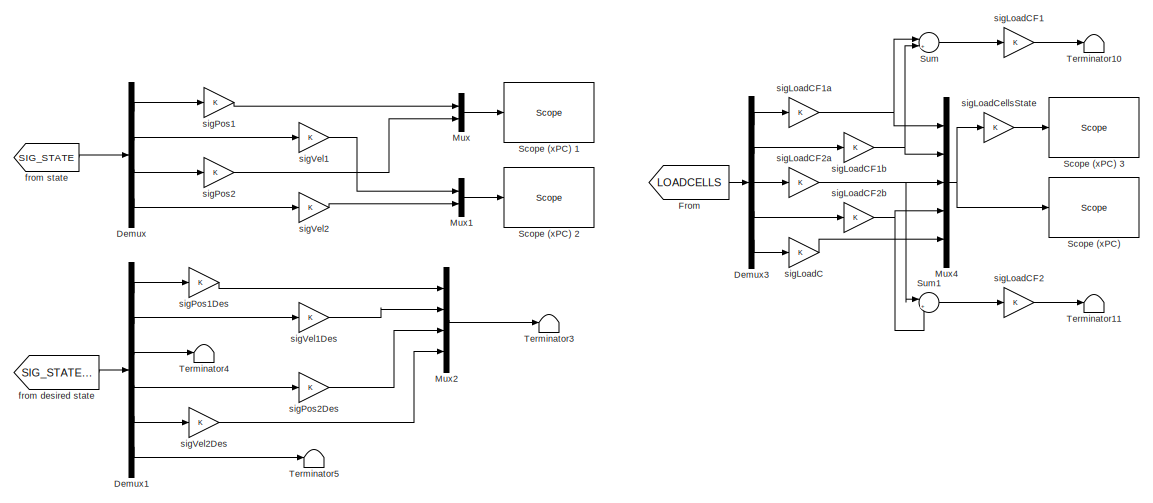
[diagram: signals - part 1/6, top center region]
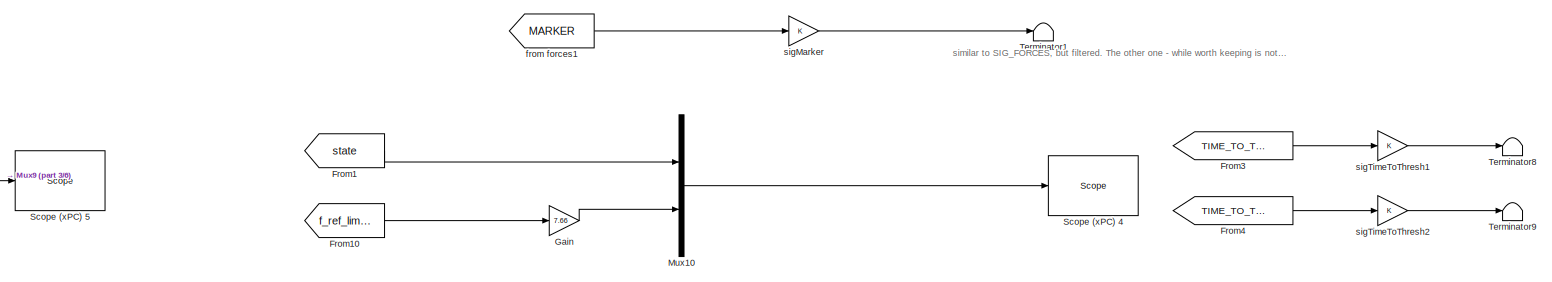
[diagram: signals - part 2/6, top center region]
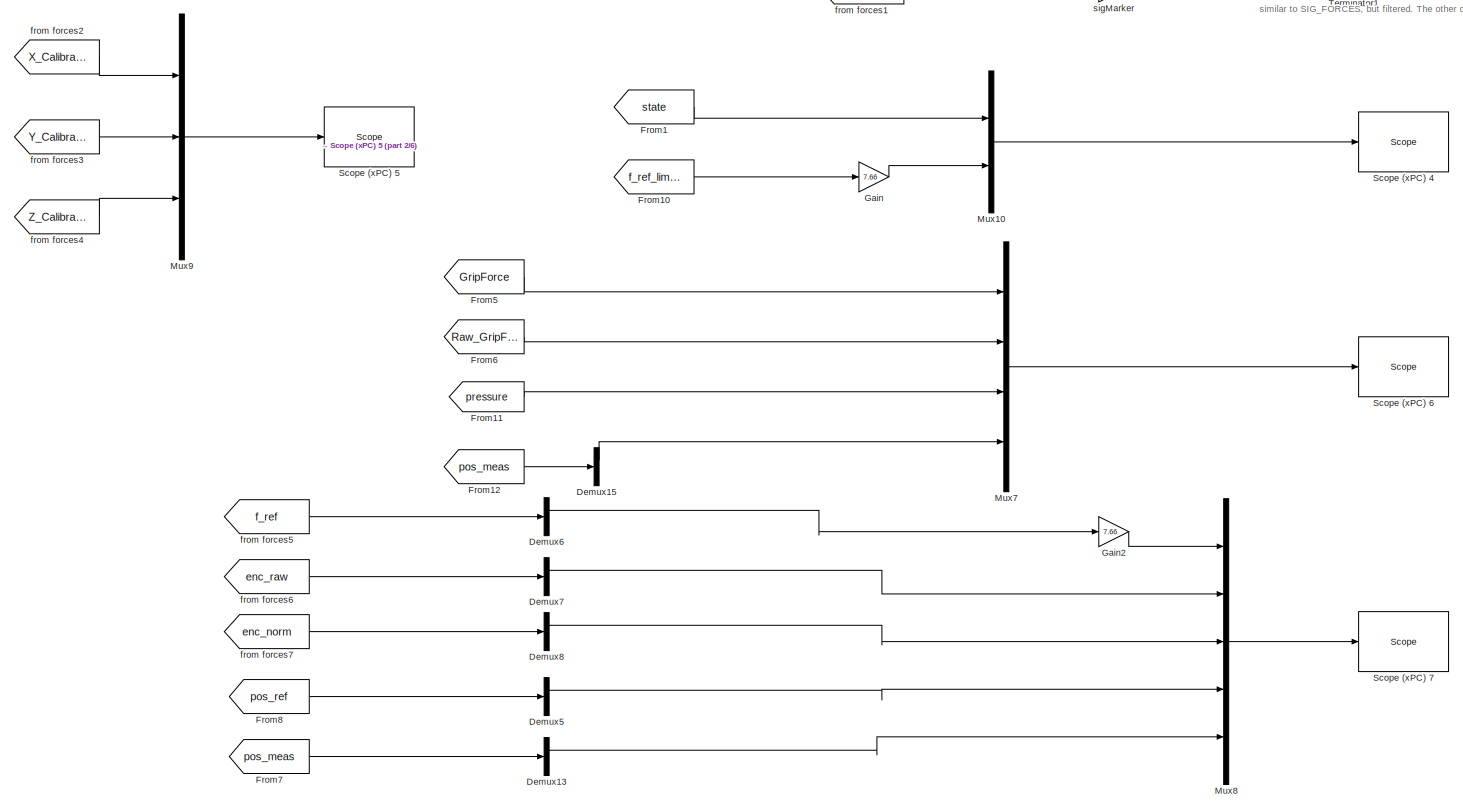
[diagram: signals - part 3/6, middle left region]
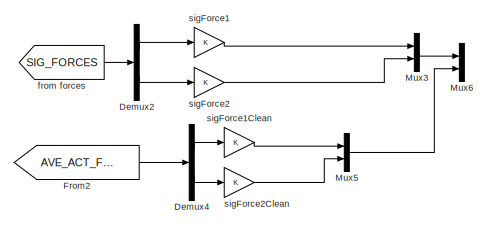
[diagram: signals - part 4/6, middle right region]
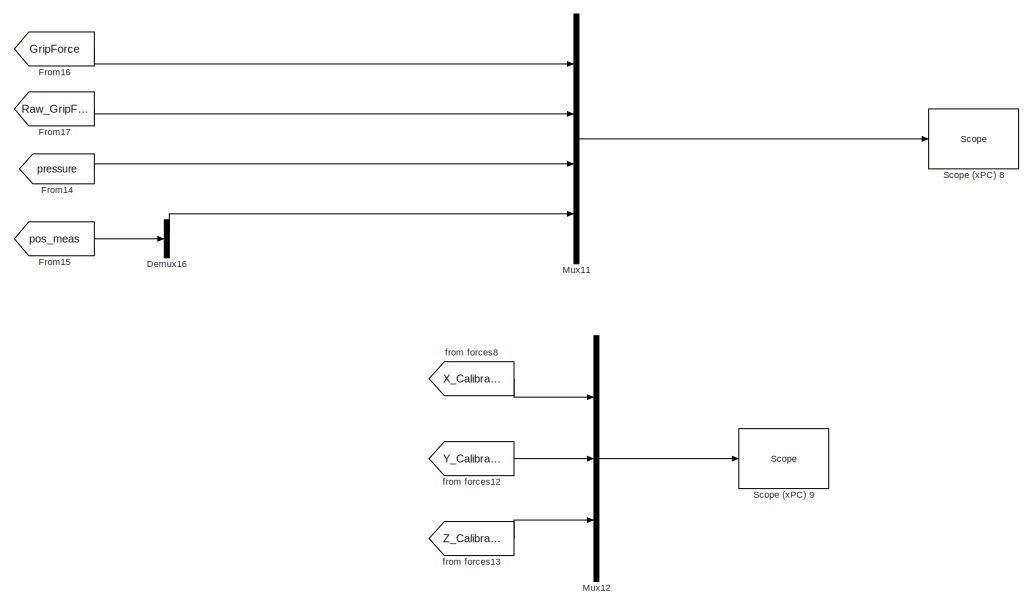
[diagram: signals - part 5/6, bottom center region]
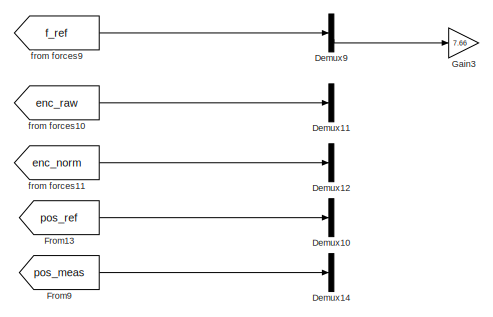
[diagram: signals - part 6/6, bottom left region]
BLOCK [SubSystem] signals
  Ports = []
  RequestExecContextInheritance = off
  Variant = off
BLOCK [Demux] signals/Demux
  Commented = on
  DisplayOption = bar
  Ports = [1, 4]
BLOCK [Demux] signals/Demux1
  Commented = on
  DisplayOption = bar
  Outputs = 6
  Ports = [1, 6]
BLOCK [Demux] signals/Demux10
  Commented = on
  DisplayOption = bar
  Outputs = 2
  Ports = [1, 2]
BLOCK [Demux] signals/Demux11
  Commented = on
  DisplayOption = bar
  Outputs = 2
  Ports = [1, 2]
BLOCK [Demux] signals/Demux12
  Commented = on
  DisplayOption = bar
  Outputs = 2
  Ports = [1, 2]
BLOCK [Demux] signals/Demux13
  DisplayOption = bar
  Outputs = 2
  Ports = [1, 2]
BLOCK [Demux] signals/Demux14
  Commented = on
  DisplayOption = bar
  Outputs = 2
  Ports = [1, 2]
BLOCK [Demux] signals/Demux15
  DisplayOption = bar
  Outputs = 2
  Ports = [1, 2]
BLOCK [Demux] signals/Demux16
  DisplayOption = bar
  Outputs = 2
  Ports = [1, 2]
BLOCK [Demux] signals/Demux2
  Commented = on
  DisplayOption = bar
  Outputs = 2
  Ports = [1, 2]
BLOCK [Demux] signals/Demux3
  Commented = on
  DisplayOption = bar
  Outputs = 5
  Ports = [1, 5]
BLOCK [Demux] signals/Demux4
  Commented = on
  DisplayOption = bar
  Outputs = 2
  Ports = [1, 2]
BLOCK [Demux] signals/Demux5
  DisplayOption = bar
  Outputs = 2
  Ports = [1, 2]
BLOCK [Demux] signals/Demux6
  DisplayOption = bar
  Outputs = 2
  Ports = [1, 2]
BLOCK [Demux] signals/Demux7
  DisplayOption = bar
  Outputs = 2
  Ports = [1, 2]
BLOCK [Demux] signals/Demux8
  DisplayOption = bar
  Outputs = 2
  Ports = [1, 2]
BLOCK [Demux] signals/Demux9
  Commented = on
  DisplayOption = bar
  Outputs = 2
  Ports = [1, 2]
BLOCK [From] signals/From
  Commented = on
  GotoTag = LOADCELLS
  TagVisibility = global
BLOCK [From] signals/From1
  GotoTag = state
  TagVisibility = global
BLOCK [From] signals/From10
  GotoTag = f_ref_limited
  TagVisibility = global
BLOCK [From] signals/From11
  GotoTag = pressure
  TagVisibility = global
BLOCK [From] signals/From12
  GotoTag = pos_meas
  TagVisibility = global
BLOCK [From] signals/From13
  Commented = on
  GotoTag = pos_ref
  TagVisibility = global
BLOCK [From] signals/From14
  GotoTag = pressure
  TagVisibility = global
BLOCK [From] signals/From15
  GotoTag = pos_meas
  TagVisibility = global
BLOCK [From] signals/From16
  GotoTag = GripForce
  TagVisibility = global
BLOCK [From] signals/From17
  GotoTag = Raw_GripForce
  TagVisibility = global
BLOCK [From] signals/From2
  Commented = on
  GotoTag = AVE_ACT_FORCE
  TagVisibility = global
BLOCK [From] signals/From3
  Commented = on
  GotoTag = TIME_TO_THRESH_1
BLOCK [From] signals/From4
  Commented = on
  GotoTag = TIME_TO_THRESH_2
BLOCK [From] signals/From5
  GotoTag = GripForce
  TagVisibility = global
BLOCK [From] signals/From6
  GotoTag = Raw_GripForce
  TagVisibility = global
BLOCK [From] signals/From7
  GotoTag = pos_meas
  TagVisibility = global
BLOCK [From] signals/From8
  GotoTag = pos_ref
  TagVisibility = global
BLOCK [From] signals/From9
  Commented = on
  GotoTag = pos_meas
  TagVisibility = global
BLOCK [Gain] signals/Gain
  Gain = 7.66
  OutDataTypeStr = Inherit: Inherit via internal rule
  ParamDataTypeStr = Inherit: Inherit via internal rule
  SaturateOnIntegerOverflow = off
BLOCK [Gain] signals/Gain2
  Gain = 7.66
  OutDataTypeStr = Inherit: Inherit via internal rule
  ParamDataTypeStr = Inherit: Inherit via internal rule
  SaturateOnIntegerOverflow = off
BLOCK [Gain] signals/Gain3
  Commented = on
  Gain = 7.66
  OutDataTypeStr = Inherit: Inherit via internal rule
  ParamDataTypeStr = Inherit: Inherit via internal rule
  SaturateOnIntegerOverflow = off
BLOCK [Mux] signals/Mux
  Commented = on
  DisplayOption = bar
  Inputs = 2
  Ports = [2, 1]
BLOCK [Mux] signals/Mux1
  Commented = on
  DisplayOption = bar
  Inputs = 2
  Ports = [2, 1]
BLOCK [Mux] signals/Mux10
  DisplayOption = bar
  Inputs = 2
  Ports = [2, 1]
BLOCK [Mux] signals/Mux11
  DisplayOption = bar
  Ports = [4, 1]
BLOCK [Mux] signals/Mux12
  DisplayOption = bar
  Inputs = 3
  Ports = [3, 1]
BLOCK [Mux] signals/Mux2
  Commented = on
  DisplayOption = bar
  Ports = [4, 1]
BLOCK [Mux] signals/Mux3
  Commented = on
  DisplayOption = bar
  Inputs = 2
  Ports = [2, 1]
BLOCK [Mux] signals/Mux4
  Commented = on
  DisplayOption = bar
  Inputs = 5
  Ports = [5, 1]
BLOCK [Mux] signals/Mux5
  Commented = on
  DisplayOption = bar
  Inputs = 2
  Ports = [2, 1]
BLOCK [Mux] signals/Mux6
  Commented = on
  DisplayOption = bar
  Inputs = 2
  Ports = [2, 1]
BLOCK [Mux] signals/Mux7
  DisplayOption = bar
  Ports = [4, 1]
BLOCK [Mux] signals/Mux8
  DisplayOption = bar
  Inputs = 5
  Ports = [5, 1]
BLOCK [Mux] signals/Mux9
  DisplayOption = bar
  Inputs = 3
  Ports = [3, 1]
BLOCK [Reference] signals/Scope (xPC)   REF=slrtlib/Displays and
Logging/Scope 
  Commented = on
  Ports = [1]
  SourceBlock = slrtlib/Displays and\nLogging/Scope
  SourceType = xpcscopeblock
BLOCK [Reference] signals/Scope (xPC) 1  REF=slrtlib/Displays and
Logging/Scope 
  Commented = on
  Ports = [1]
  SourceBlock = slrtlib/Displays and\nLogging/Scope
  SourceType = xpcscopeblock
BLOCK [Reference] signals/Scope (xPC) 2  REF=slrtlib/Displays and
Logging/Scope 
  Commented = on
  Ports = [1]
  SourceBlock = slrtlib/Displays and\nLogging/Scope
  SourceType = xpcscopeblock
BLOCK [Reference] signals/Scope (xPC) 3  REF=slrtlib/Displays and
Logging/Scope 
  Commented = on
  Ports = [1]
  SourceBlock = slrtlib/Displays and\nLogging/Scope
  SourceType = xpcscopeblock
BLOCK [Reference] signals/Scope (xPC) 4  REF=slrtlib/Displays and
Logging/Scope 
  Ports = [1]
  SourceBlock = slrtlib/Displays and\nLogging/Scope
  SourceType = xpcscopeblock
BLOCK [Reference] signals/Scope (xPC) 5  REF=slrtlib/Displays and
Logging/Scope 
  Ports = [1]
  SourceBlock = slrtlib/Displays and\nLogging/Scope
  SourceType = xpcscopeblock
BLOCK [Reference] signals/Scope (xPC) 6  REF=slrtlib/Displays and
Logging/Scope 
  Ports = [1]
  SourceBlock = slrtlib/Displays and\nLogging/Scope
  SourceType = xpcscopeblock
BLOCK [Reference] signals/Scope (xPC) 7  REF=slrtlib/Displays and
Logging/Scope 
  Ports = [1]
  SourceBlock = slrtlib/Displays and\nLogging/Scope
  SourceType = xpcscopeblock
BLOCK [Reference] signals/Scope (xPC) 8  REF=slrtlib/Displays and
Logging/Scope 
  Ports = [1]
  SourceBlock = slrtlib/Displays and\nLogging/Scope
  SourceType = xpcscopeblock
BLOCK [Reference] signals/Scope (xPC) 9  REF=slrtlib/Displays and
Logging/Scope 
  Ports = [1]
  SourceBlock = slrtlib/Displays and\nLogging/Scope
  SourceType = xpcscopeblock
BLOCK [Sum] signals/Sum
  Commented = on
  IconShape = round
  InputSameDT = off
  Inputs = |++
  OutDataTypeStr = Inherit: Inherit via internal rule
  Ports = [2, 1]
  SaturateOnIntegerOverflow = off
BLOCK [Sum] signals/Sum1
  Commented = on
  IconShape = round
  InputSameDT = off
  Inputs = |++
  OutDataTypeStr = Inherit: Inherit via internal rule
  Ports = [2, 1]
  SaturateOnIntegerOverflow = off
BLOCK [Terminator] signals/Terminator1
  Commented = on
BLOCK [Terminator] signals/Terminator10
  Commented = on
BLOCK [Terminator] signals/Terminator11
  Commented = on
BLOCK [Terminator] signals/Terminator3
  Commented = on
BLOCK [Terminator] signals/Terminator4
  Commented = on
BLOCK [Terminator] signals/Terminator5
  Commented = on
BLOCK [Terminator] signals/Terminator8
  Commented = on
BLOCK [Terminator] signals/Terminator9
  Commented = on
BLOCK [From] signals/from desired state
  Commented = on
  GotoTag = SIG_STATEDES
BLOCK [From] signals/from forces
  Commented = on
  GotoTag = SIG_FORCES
  TagVisibility = global
BLOCK [From] signals/from forces1
  Commented = on
  GotoTag = MARKER
  TagVisibility = global
BLOCK [From] signals/from forces10
  Commented = on
  GotoTag = enc_raw
  TagVisibility = global
BLOCK [From] signals/from forces11
  Commented = on
  GotoTag = enc_norm
  TagVisibility = global
BLOCK [From] signals/from forces12
  GotoTag = Y_Calibrated
  TagVisibility = global
BLOCK [From] signals/from forces13
  GotoTag = Z_Calibrated
  TagVisibility = global
BLOCK [From] signals/from forces2
  GotoTag = X_Calibrated
  TagVisibility = global
BLOCK [From] signals/from forces3
  GotoTag = Y_Calibrated
  TagVisibility = global
BLOCK [From] signals/from forces4
  GotoTag = Z_Calibrated
  TagVisibility = global
BLOCK [From] signals/from forces5
  GotoTag = f_ref
  TagVisibility = global
BLOCK [From] signals/from forces6
  GotoTag = enc_raw
  TagVisibility = global
BLOCK [From] signals/from forces7
  GotoTag = enc_norm
  TagVisibility = global
BLOCK [From] signals/from forces8
  GotoTag = X_Calibrated
  TagVisibility = global
BLOCK [From] signals/from forces9
  Commented = on
  GotoTag = f_ref
  TagVisibility = global
BLOCK [From] signals/from state
  Commented = on
  GotoTag = SIG_STATE
  TagVisibility = global
BLOCK [Gain] signals/sigForce1
  Commented = on
  OutDataTypeStr = Inherit: Inherit via internal rule
  ParamDataTypeStr = Inherit: Inherit via internal rule
  SaturateOnIntegerOverflow = off
BLOCK [Gain] signals/sigForce1Clean
  Commented = on
  OutDataTypeStr = Inherit: Inherit via internal rule
  ParamDataTypeStr = Inherit: Inherit via internal rule
  SaturateOnIntegerOverflow = off
BLOCK [Gain] signals/sigForce2
  Commented = on
  OutDataTypeStr = Inherit: Inherit via internal rule
  ParamDataTypeStr = Inherit: Inherit via internal rule
  SaturateOnIntegerOverflow = off
BLOCK [Gain] signals/sigForce2Clean
  Commented = on
  OutDataTypeStr = Inherit: Inherit via internal rule
  ParamDataTypeStr = Inherit: Inherit via internal rule
  SaturateOnIntegerOverflow = off
BLOCK [Gain] signals/sigLoadC
  Commented = on
  OutDataTypeStr = Inherit: Inherit via internal rule
  ParamDataTypeStr = Inherit: Inherit via internal rule
  SaturateOnIntegerOverflow = off
BLOCK [Gain] signals/sigLoadCF1
  Commented = on
  OutDataTypeStr = Inherit: Inherit via internal rule
  ParamDataTypeStr = Inherit: Inherit via internal rule
  SaturateOnIntegerOverflow = off
BLOCK [Gain] signals/sigLoadCF1a
  Commented = on
  OutDataTypeStr = Inherit: Inherit via internal rule
  ParamDataTypeStr = Inherit: Inherit via internal rule
  SaturateOnIntegerOverflow = off
BLOCK [Gain] signals/sigLoadCF1b
  Commented = on
  OutDataTypeStr = Inherit: Inherit via internal rule
  ParamDataTypeStr = Inherit: Inherit via internal rule
  SaturateOnIntegerOverflow = off
BLOCK [Gain] signals/sigLoadCF2
  Commented = on
  OutDataTypeStr = Inherit: Inherit via internal rule
  ParamDataTypeStr = Inherit: Inherit via internal rule
  SaturateOnIntegerOverflow = off
BLOCK [Gain] signals/sigLoadCF2a
  Commented = on
  OutDataTypeStr = Inherit: Inherit via internal rule
  ParamDataTypeStr = Inherit: Inherit via internal rule
  SaturateOnIntegerOverflow = off
BLOCK [Gain] signals/sigLoadCF2b
  Commented = on
  OutDataTypeStr = Inherit: Inherit via internal rule
  ParamDataTypeStr = Inherit: Inherit via internal rule
  SaturateOnIntegerOverflow = off
BLOCK [Gain] signals/sigLoadCellsState
  Commented = on
  OutDataTypeStr = Inherit: Inherit via internal rule
  ParamDataTypeStr = Inherit: Inherit via internal rule
  SaturateOnIntegerOverflow = off
BLOCK [Gain] signals/sigMarker
  Commented = on
  OutDataTypeStr = Inherit: Inherit via internal rule
  ParamDataTypeStr = Inherit: Inherit via internal rule
  SaturateOnIntegerOverflow = off
BLOCK [Gain] signals/sigPos1
  Commented = on
  OutDataTypeStr = Inherit: Inherit via internal rule
  ParamDataTypeStr = Inherit: Inherit via internal rule
  SaturateOnIntegerOverflow = off
BLOCK [Gain] signals/sigPos1Des
  Commented = on
  OutDataTypeStr = Inherit: Inherit via internal rule
  ParamDataTypeStr = Inherit: Inherit via internal rule
  SaturateOnIntegerOverflow = off
BLOCK [Gain] signals/sigPos2
  Commented = on
  OutDataTypeStr = Inherit: Inherit via internal rule
  ParamDataTypeStr = Inherit: Inherit via internal rule
  SaturateOnIntegerOverflow = off
BLOCK [Gain] signals/sigPos2Des
  Commented = on
  OutDataTypeStr = Inherit: Inherit via internal rule
  ParamDataTypeStr = Inherit: Inherit via internal rule
  SaturateOnIntegerOverflow = off
BLOCK [Gain] signals/sigTimeToThresh1
  Commented = on
  OutDataTypeStr = Inherit: Inherit via internal rule
  ParamDataTypeStr = Inherit: Inherit via internal rule
  SaturateOnIntegerOverflow = off
BLOCK [Gain] signals/sigTimeToThresh2
  Commented = on
  OutDataTypeStr = Inherit: Inherit via internal rule
  ParamDataTypeStr = Inherit: Inherit via internal rule
  SaturateOnIntegerOverflow = off
BLOCK [Gain] signals/sigVel1
  Commented = on
  OutDataTypeStr = Inherit: Inherit via internal rule
  ParamDataTypeStr = Inherit: Inherit via internal rule
  SaturateOnIntegerOverflow = off
BLOCK [Gain] signals/sigVel1Des
  Commented = on
  OutDataTypeStr = Inherit: Inherit via internal rule
  ParamDataTypeStr = Inherit: Inherit via internal rule
  SaturateOnIntegerOverflow = off
BLOCK [Gain] signals/sigVel2
  Commented = on
  OutDataTypeStr = Inherit: Inherit via internal rule
  ParamDataTypeStr = Inherit: Inherit via internal rule
  SaturateOnIntegerOverflow = off
BLOCK [Gain] signals/sigVel2Des
  Commented = on
  OutDataTypeStr = Inherit: Inherit via internal rule
  ParamDataTypeStr = Inherit: Inherit via internal rule
  SaturateOnIntegerOverflow = off
ANNOTATION FSM/Forward Mode //Reverse Mode: ON/OFF
ANNOTATION FSM/ON//OFF: ON/OFF
ANNOTATION FSM/One Finger Mode// Two Finger Mode: ON/OFF
ANNOTATION FSM/Position Control // Force Control: ON/OFF
ANNOTATION LL Position Controller: Position PD controller that outputs force
ANNOTATION Robot: Note that this is NOT suitable for any type of feedback - it is just a parameter for the game
ANNOTATION Robot: Putting limits onto the force reference; This goes into the force controller that goes into the motor drivers
ANNOTATION Robot: calibrated such that full flexion is equal to 1. To calibrate, just read the value when at full flexion and divide by it.
ANNOTATION parameters: used for variables that we do not want to change all of a sudden (like gains).
ANNOTATION signals: similar to SIG_FORCES, but filtered. The other one - while worth keeping is not clean enough to use in the game.
LINE FSM/Constant10:1 -> FSM/MATLAB Function:16
LINE FSM/Constant1:1 -> FSM/MATLAB Function:8
LINE FSM/Constant2:1 -> FSM/MATLAB Function:17
LINE FSM/Constant3:1 -> FSM/MATLAB Function:7
LINE FSM/Constant4:1 -> FSM/MATLAB Function:14
LINE FSM/Constant5:1 -> FSM/MATLAB Function:15
LINE FSM/Constant6:1 -> FSM/MATLAB Function:20
LINE FSM/Constant7:1 -> FSM/MATLAB Function:18
LINE FSM/Constant8:1 -> FSM/MATLAB Function:19
LINE FSM/Data Type Conversion1:1 -> FSM/MATLAB Function:4
LINE FSM/Data Type Conversion2:1 -> FSM/MATLAB Function:3
LINE FSM/Data Type Conversion3:1 -> FSM/MATLAB Function:5
LINE FSM/Data Type Conversion:1 -> FSM/MATLAB Function:2
LINE FSM/Forward Mode //Reverse Mode/Constant:1 -> FSM/Forward Mode //Reverse Mode/ :1
LINE FSM/Forward Mode //Reverse Mode:1 -> FSM/Data Type Conversion3:1
LINE FSM/From10:1 -> FSM/Unit Delay2:1
LINE FSM/From1:1 -> FSM/Unit Delay1:1
LINE FSM/From2:1 -> FSM/Unit Delay3:1
LINE FSM/From3:1 -> FSM/Subsystem:1
LINE FSM/From5:1 -> FSM/Subsystem1:1
LINE FSM/From6:1 -> FSM/Subsystem1:2
LINE FSM/From7:1 -> FSM/MATLAB Function:12
LINE FSM/From:1 -> FSM/Subsystem:2
NET FSM/MATLAB Function:1 -> FSM/Goto2:1, FSM/Unit Delay:1
LINE FSM/MATLAB Function:10 -> FSM/Goto9:1
LINE FSM/MATLAB Function:2 -> FSM/Goto3:1
LINE FSM/MATLAB Function:3 -> FSM/Goto1:1
LINE FSM/MATLAB Function:4 -> FSM/Goto11:1
LINE FSM/MATLAB Function:5 -> FSM/Goto4:1
LINE FSM/MATLAB Function:6 -> FSM/Goto6:1
LINE FSM/MATLAB Function:7 -> FSM/Goto13:1
LINE FSM/MATLAB Function:8 -> FSM/Goto7:1
LINE FSM/MATLAB Function:9 -> FSM/Goto8:1
LINE FSM/ON//OFF/Constant:1 -> FSM/ON//OFF/ :1
LINE FSM/ON//OFF:1 -> FSM/Data Type Conversion:1
LINE FSM/One Finger Mode// Two Finger Mode/Constant:1 -> FSM/One Finger Mode// Two Finger Mode/ :1
LINE FSM/One Finger Mode// Two Finger Mode:1 -> FSM/Data Type Conversion2:1
LINE FSM/Position Control // Force Control/Constant:1 -> FSM/Position Control // Force Control/ :1
LINE FSM/Position Control // Force Control:1 -> FSM/Data Type Conversion1:1
LINE FSM/Subsystem/Data Type Conversion:1 -> FSM/Subsystem/Discrete-Time Integrator:2
LINE FSM/Subsystem/Detect Change:1 -> FSM/Subsystem/Data Type Conversion:1
LINE FSM/Subsystem/Discrete-Time Integrator:1 -> FSM/Subsystem/Out1:1
LINE FSM/Subsystem/In1:1 -> FSM/Subsystem/Unit Delay1:1
LINE FSM/Subsystem/In2:1 -> FSM/Subsystem/Unit Delay2:1
LINE FSM/Subsystem/Unit Delay1:1 -> FSM/Subsystem/Discrete-Time Integrator:1
LINE FSM/Subsystem/Unit Delay2:1 -> FSM/Subsystem/Detect Change:1
LINE FSM/Subsystem1/Data Type Conversion:1 -> FSM/Subsystem1/Discrete-Time Integrator:2
LINE FSM/Subsystem1/Detect Change:1 -> FSM/Subsystem1/Data Type Conversion:1
LINE FSM/Subsystem1/Discrete-Time Integrator:1 -> FSM/Subsystem1/Out1:1
LINE FSM/Subsystem1/In1:1 -> FSM/Subsystem1/Unit Delay1:1
LINE FSM/Subsystem1/In2:1 -> FSM/Subsystem1/Unit Delay2:1
LINE FSM/Subsystem1/Unit Delay1:1 -> FSM/Subsystem1/Discrete-Time Integrator:1
LINE FSM/Subsystem1/Unit Delay2:1 -> FSM/Subsystem1/Detect Change:1
LINE FSM/Subsystem1:1 -> FSM/MATLAB Function:11
NET FSM/Subsystem:1 -> FSM/Goto10:1, FSM/MATLAB Function:6
LINE FSM/Unit Delay1:1 -> FSM/MATLAB Function:13
LINE FSM/Unit Delay2:1 -> FSM/MATLAB Function:10
LINE FSM/Unit Delay3:1 -> FSM/MATLAB Function:9
LINE FSM/Unit Delay:1 -> FSM/MATLAB Function:1
LINE From4:1 -> LL Position Controller:1
LINE From8:1 -> Robot:1
LINE HL Controller/Damping:1 -> HL Controller/Discrete-Time Integrator:1
LINE HL Controller/Data Type Conversion:1 -> HL Controller/Discrete-Time Integrator:2
LINE HL Controller/Delay1:1 -> HL Controller/Detect Change:1
LINE HL Controller/Delay:1 -> HL Controller/Demux:1
LINE HL Controller/Demux:2 -> HL Controller/Discrete Filter1:1
LINE HL Controller/Detect Change:1 -> HL Controller/Data Type Conversion:1
LINE HL Controller/Discrete Filter1:1 -> HL Controller/Gain1:1
LINE HL Controller/Discrete-Time Integrator:1 -> HL Controller/pos_ref_g:1
LINE HL Controller/Gain1:1 -> HL Controller/Damping:1
LINE HL Controller/from forces1:1 -> HL Controller/Delay1:1
LINE HL Controller/from forces2:1 -> HL Controller/Delay:1
LINE HL Controller:1 -> Goto:1
NET LL Force Controller/Demux:1 -> LL Force Controller/Gain:1, LL Force Controller/Mux:2
LINE LL Force Controller/From11:1 -> LL Force Controller/Demux:1
LINE LL Force Controller/Gain:1 -> LL Force Controller/Mux:1
LINE LL Force Controller/Mux:1 -> LL Force Controller/ f_ref_force:1
LINE LL Force Controller:1 -> Goto12:1
LINE LL Position Controller/Constant:1 -> LL Position Controller/Mux:2
LINE LL Position Controller/From1:1 -> LL Position Controller/Sum1:2
LINE LL Position Controller/From2:1 -> LL Position Controller/Sum1:1
LINE LL Position Controller/From3:1 -> LL Position Controller/Saturation Dynamic2:1
LINE LL Position Controller/From4:1 -> LL Position Controller/Saturation Dynamic2:3
LINE LL Position Controller/From5:1 -> LL Position Controller/Saturation Dynamic1:1
LINE LL Position Controller/From6:1 -> LL Position Controller/Saturation Dynamic1:3
LINE LL Position Controller/Mux:1 -> LL Position Controller/Saturation Dynamic2:2
LINE LL Position Controller/Saturation Dynamic1:1 -> LL Position Controller/Sum:1
LINE LL Position Controller/Saturation Dynamic2:1 -> LL Position Controller/ f_ref_pid:1
LINE LL Position Controller/Sum1:1 -> LL Position Controller/Mux:1
NET LL Position Controller/Sum:1 -> LL Position Controller/Discrete PID Controller:1, LL Position Controller/Goto2:1
LINE LL Position Controller/pos_meas:1 -> LL Position Controller/Sum:2
LINE LL Position Controller/pos_ref:1 -> LL Position Controller/Saturation Dynamic1:2
LINE LL Position Controller:1 -> Goto5:1
LINE Robot/Demux1:1 -> Robot/Goto5:1
LINE Robot/Demux1:2 -> Robot/Goto6:1
NET Robot/Demux:1 -> Robot/account for handedness:1, Robot/filtered force output:1
NET Robot/Demux:2 -> Robot/account for handedness:2, Robot/filtered force output:2
LINE Robot/Discrete Derivative:1 -> Robot/Discrete Filter1:1
NET Robot/Discrete Filter1:1 -> Robot/Demux1:1, Robot/Goto9:1
LINE Robot/From1:1 -> Robot/Triggered Subsystem:trigger
LINE Robot/From2:1 -> Robot/Sum:2
LINE Robot/From3:1 -> Robot/Triggered Subsystem1:trigger
LINE Robot/From4:1 -> Robot/Saturation Dynamic:1
LINE Robot/From5:1 -> Robot/Gain1:1
LINE Robot/From6:1 -> Robot/Triggered Subsystem1:1
LINE Robot/From:1 -> Robot/Triggered Subsystem:1
LINE Robot/Gain1:1 -> Robot/Saturation Dynamic:3
NET Robot/Gain:1 -> Robot/Goto4:1, Robot/Sum:1
LINE Robot/MATLAB Function1:1 -> Robot/Goto10:1
LINE Robot/MATLAB Function2:1 -> Robot/MATLAB Function8:1
LINE Robot/MATLAB Function3:1 -> Robot/MATLAB Function:1
LINE Robot/MATLAB Function4:1 -> Robot/MATLAB Function7:1
LINE Robot/MATLAB Function5:1 -> Robot/MATLAB Function6:1
LINE Robot/MATLAB Function6:1 -> Robot/Goto18:1
LINE Robot/MATLAB Function7:1 -> Robot/Goto19:1
LINE Robot/MATLAB Function8:1 -> Robot/Goto20:1
LINE Robot/MATLAB Function:1 -> Robot/Goto17:1
LINE Robot/Mux1:1 -> Robot/account for handedness force:1
NET Robot/Mux2:1 -> Robot/Gain:1, Robot/Goto3:1
LINE Robot/PCI 6221 ENC 1:1 -> Robot/account for handedness1:2
LINE Robot/PCI 6221 ENC :1 -> Robot/account for handedness1:1
LINE Robot/PCI-6221 AD1:1 -> Robot/account for handedness2:1
NET Robot/PCI-6221 AD1:10 -> Robot/Goto11:1, Robot/MATLAB Function1:1
NET Robot/PCI-6221 AD1:11 -> Robot/Goto15:1, Robot/MATLAB Function2:1
NET Robot/PCI-6221 AD1:12 -> Robot/Goto13:1, Robot/MATLAB Function3:1
NET Robot/PCI-6221 AD1:2 -> Robot/Goto16:1, Robot/MATLAB Function5:1
LINE Robot/PCI-6221 AD1:3 -> Robot/account for handedness2:2
NET Robot/PCI-6221 AD1:9 -> Robot/Goto14:1, Robot/MATLAB Function4:1
NET Robot/Saturation Dynamic:1 -> Robot/Demux:1, Robot/Goto8:1
NET Robot/Sum:1 -> Robot/Discrete Derivative:1, Robot/Goto2:1, Robot/pos_meas:1
LINE Robot/Triggered Subsystem/In1:1 -> Robot/Triggered Subsystem/Out1:1
LINE Robot/Triggered Subsystem1/In1:1 -> Robot/Triggered Subsystem1/Out1:1
LINE Robot/Triggered Subsystem1:1 -> Robot/Unit Delay1:1
LINE Robot/Triggered Subsystem:1 -> Robot/Unit Delay:1
LINE Robot/Unit Delay1:1 -> Robot/Goto12:1
LINE Robot/Unit Delay:1 -> Robot/Goto7:1
LINE Robot/account for handedness force/From:1 -> Robot/account for handedness force/MATLAB Function:2
LINE Robot/account for handedness force/In1:1 -> Robot/account for handedness force/MATLAB Function:1
LINE Robot/account for handedness force/MATLAB Function:1 -> Robot/account for handedness force/Out1:1
LINE Robot/account for handedness force:1 -> Robot/Goto:1
LINE Robot/account for handedness/From:1 -> Robot/account for handedness/MATLAB Function:3
LINE Robot/account for handedness/In1:1 -> Robot/account for handedness/MATLAB Function:1
LINE Robot/account for handedness/In2:1 -> Robot/account for handedness/MATLAB Function:2
LINE Robot/account for handedness/MATLAB Function:1 -> Robot/account for handedness/Out1:1
LINE Robot/account for handedness/MATLAB Function:2 -> Robot/account for handedness/Out2:1
LINE Robot/account for handedness1/From:1 -> Robot/account for handedness1/MATLAB Function:3
LINE Robot/account for handedness1/In1:1 -> Robot/account for handedness1/MATLAB Function:1
LINE Robot/account for handedness1/In2:1 -> Robot/account for handedness1/MATLAB Function:2
LINE Robot/account for handedness1/MATLAB Function:1 -> Robot/account for handedness1/Out1:1
LINE Robot/account for handedness1/MATLAB Function:2 -> Robot/account for handedness1/Out2:1
LINE Robot/account for handedness1:1 -> Robot/Mux2:1
LINE Robot/account for handedness1:2 -> Robot/Mux2:2
LINE Robot/account for handedness2/From:1 -> Robot/account for handedness2/MATLAB Function:3
LINE Robot/account for handedness2/In1:1 -> Robot/account for handedness2/MATLAB Function:1
LINE Robot/account for handedness2/In2:1 -> Robot/account for handedness2/MATLAB Function:2
LINE Robot/account for handedness2/MATLAB Function:1 -> Robot/account for handedness2/Out1:1
LINE Robot/account for handedness2/MATLAB Function:2 -> Robot/account for handedness2/Out2:1
LINE Robot/account for handedness:1 -> Robot/PCI-6221 DA:1
LINE Robot/account for handedness:2 -> Robot/PCI-6221 DA:2
LINE Robot/f_ref:1 -> Robot/Saturation Dynamic:2
LINE Robot/filtered force output/In1:1 -> Robot/filtered force output/Low Pass 100 Hz:1
LINE Robot/filtered force output/In2:1 -> Robot/filtered force output/Low Pass 100 Hz1:1
LINE Robot/filtered force output/Low Pass 100 Hz1:1 -> Robot/filtered force output/Memory1:1
LINE Robot/filtered force output/Low Pass 100 Hz:1 -> Robot/filtered force output/Memory:1
LINE Robot/filtered force output/Memory1:1 -> Robot/filtered force output/Mux2:2
LINE Robot/filtered force output/Memory:1 -> Robot/filtered force output/Mux2:1
LINE Robot/filtered force output/Mux2:1 -> Robot/filtered force output/Out1:1
LINE Robot/filtered force output:1 -> Robot/Goto1:1
LINE Robot/gravDir/Constant:1 -> Robot/gravDir/Sum:2
LINE Robot/gravDir/In1:1 -> Robot/gravDir/Sum:1
LINE Robot/gravDir/Sum:1 -> Robot/gravDir/gain:1
LINE Robot/gravDir/gain:1 -> Robot/gravDir/Goto:1
LINE Robot:1 -> LL Position Controller:2
LINE Subsystem2/From11:1 -> Subsystem2/Mux:2
LINE Subsystem2/From12:1 -> Subsystem2/Mux:3
LINE Subsystem2/From13:1 -> Subsystem2/Mux:4
LINE Subsystem2/From14:1 -> Subsystem2/Mux:5
LINE Subsystem2/From9:1 -> Subsystem2/Mux:1
LINE Subsystem2/Mux:1 -> Subsystem2/Out1:1
LINE Subsystem2:1 -> Out1:1
LINE parameters/Mux1:1 -> parameters/Goto2:1
LINE parameters/Mux2:1 -> parameters/Goto13:1
LINE parameters/Mux:1 -> parameters/Goto1:1
LINE parameters/Rounding Function:1 -> parameters/Saturation1:1
LINE parameters/Saturation1:1 -> parameters/Goto5:1
LINE parameters/Saturation2:1 -> parameters/Goto6:1
LINE parameters/Saturation:1 -> parameters/Goto4:1
LINE parameters/gain transition/From:1 -> parameters/gain transition/gainramp:1
LINE parameters/gain transition/Memory:1 -> parameters/gain transition/gainramp:3
LINE parameters/gain transition/gainramp:1 -> parameters/gain transition/val:1
LINE parameters/gain transition/gainramp:2 -> parameters/gain transition/Memory:1
LINE parameters/gain transition/targ:1 -> parameters/gain transition/gainramp:2
LINE parameters/gain transition1/From:1 -> parameters/gain transition1/gainramp:1
LINE parameters/gain transition1/Memory:1 -> parameters/gain transition1/gainramp:3
LINE parameters/gain transition1/gainramp:1 -> parameters/gain transition1/val:1
LINE parameters/gain transition1/gainramp:2 -> parameters/gain transition1/Memory:1
LINE parameters/gain transition1/targ:1 -> parameters/gain transition1/gainramp:2
LINE parameters/gain transition1:1 -> parameters/Mux:2
LINE parameters/gain transition2/From:1 -> parameters/gain transition2/gainramp:1
LINE parameters/gain transition2/Memory:1 -> parameters/gain transition2/gainramp:3
LINE parameters/gain transition2/gainramp:1 -> parameters/gain transition2/val:1
LINE parameters/gain transition2/gainramp:2 -> parameters/gain transition2/Memory:1
LINE parameters/gain transition2/targ:1 -> parameters/gain transition2/gainramp:2
LINE parameters/gain transition2:1 -> parameters/Mux1:1
LINE parameters/gain transition3/From:1 -> parameters/gain transition3/gainramp:1
LINE parameters/gain transition3/Memory:1 -> parameters/gain transition3/gainramp:3
LINE parameters/gain transition3/gainramp:1 -> parameters/gain transition3/val:1
LINE parameters/gain transition3/gainramp:2 -> parameters/gain transition3/Memory:1
LINE parameters/gain transition3/targ:1 -> parameters/gain transition3/gainramp:2
LINE parameters/gain transition3:1 -> parameters/Mux1:2
LINE parameters/gain transition4/From:1 -> parameters/gain transition4/gainramp:1
LINE parameters/gain transition4/Memory:1 -> parameters/gain transition4/gainramp:3
LINE parameters/gain transition4/gainramp:1 -> parameters/gain transition4/val:1
LINE parameters/gain transition4/gainramp:2 -> parameters/gain transition4/Memory:1
LINE parameters/gain transition4/targ:1 -> parameters/gain transition4/gainramp:2
LINE parameters/gain transition4:1 -> parameters/Mux2:1
LINE parameters/gain transition5/From:1 -> parameters/gain transition5/gainramp:1
LINE parameters/gain transition5/Memory:1 -> parameters/gain transition5/gainramp:3
LINE parameters/gain transition5/gainramp:1 -> parameters/gain transition5/val:1
LINE parameters/gain transition5/gainramp:2 -> parameters/gain transition5/Memory:1
LINE parameters/gain transition5/targ:1 -> parameters/gain transition5/gainramp:2
LINE parameters/gain transition5:1 -> parameters/Mux2:2
LINE parameters/gain transition:1 -> parameters/Mux:1
LINE parameters/parChangeRate:1 -> parameters/Goto3:1
LINE parameters/parFThresh:1 -> parameters/Goto15:1
LINE parameters/parFixedDur:1 -> parameters/Saturation2:1
LINE parameters/parForceTrigger:1 -> parameters/Goto10:1
LINE parameters/parKd1:1 -> parameters/gain transition2:1
LINE parameters/parKd2:1 -> parameters/gain transition3:1
LINE parameters/parKdV1:1 -> parameters/gain transition4:1
LINE parameters/parKdV2:1 -> parameters/gain transition5:1
LINE parameters/parKp1:1 -> parameters/gain transition:1
LINE parameters/parKp2:1 -> parameters/gain transition1:1
LINE parameters/parLeftMode:1 -> parameters/Saturation:1
LINE parameters/parMarker:1 -> parameters/Goto7:1
LINE parameters/parMaxTrajDur:1 -> parameters/Goto9:1
LINE parameters/parPStop:1 -> parameters/Goto14:1
LINE parameters/parTrajMode:1 -> parameters/Rounding Function:1
LINE parameters/parVThresh:1 -> parameters/Goto:1
LINE parameters/parWiggleAmp:1 -> parameters/Goto11:1
NET parameters/paremeters_ must_be_one:1 -> parameters/parChangeRate:1, parameters/parFThresh:1, parameters/parFixedDur:1, parameters/parForceTrigger:1, parameters/parKd1:1, parameters/parKd2:1, parameters/parKdV1:1, parameters/parKdV2:1, parameters/parKp1:1, parameters/parKp2:1, parameters/parLeftMode:1, parameters/parMarker:1, parameters/parMaxTrajDur:1, parameters/parPStop:1, parameters/parTrajMode:1, parameters/parVThresh:1, parameters/parWiggleAmp:1
LINE signals/Demux13:1 -> signals/Mux8:5
LINE signals/Demux15:1 -> signals/Mux7:4
LINE signals/Demux16:1 -> signals/Mux11:4
LINE signals/Demux1:1 -> signals/sigPos1Des:1
LINE signals/Demux1:2 -> signals/sigVel1Des:1
LINE signals/Demux1:3 -> signals/Terminator4:1
LINE signals/Demux1:4 -> signals/sigPos2Des:1
LINE signals/Demux1:5 -> signals/sigVel2Des:1
LINE signals/Demux1:6 -> signals/Terminator5:1
LINE signals/Demux2:1 -> signals/sigForce1:1
LINE signals/Demux2:2 -> signals/sigForce2:1
LINE signals/Demux3:1 -> signals/sigLoadCF1a:1
LINE signals/Demux3:2 -> signals/sigLoadCF1b:1
LINE signals/Demux3:3 -> signals/sigLoadCF2a:1
LINE signals/Demux3:4 -> signals/sigLoadCF2b:1
LINE signals/Demux3:5 -> signals/sigLoadC:1
LINE signals/Demux4:1 -> signals/sigForce1Clean:1
LINE signals/Demux4:2 -> signals/sigForce2Clean:1
LINE signals/Demux5:1 -> signals/Mux8:4
LINE signals/Demux6:1 -> signals/Gain2:1
LINE signals/Demux7:1 -> signals/Mux8:2
LINE signals/Demux8:1 -> signals/Mux8:3
LINE signals/Demux9:2 -> signals/Gain3:1
LINE signals/Demux:1 -> signals/sigPos1:1
LINE signals/Demux:2 -> signals/sigVel1:1
LINE signals/Demux:3 -> signals/sigPos2:1
LINE signals/Demux:4 -> signals/sigVel2:1
LINE signals/From10:1 -> signals/Gain:1
LINE signals/From11:1 -> signals/Mux7:3
LINE signals/From12:1 -> signals/Demux15:1
LINE signals/From13:1 -> signals/Demux10:1
LINE signals/From14:1 -> signals/Mux11:3
LINE signals/From15:1 -> signals/Demux16:1
LINE signals/From16:1 -> signals/Mux11:1
LINE signals/From17:1 -> signals/Mux11:2
LINE signals/From1:1 -> signals/Mux10:1
LINE signals/From2:1 -> signals/Demux4:1
LINE signals/From3:1 -> signals/sigTimeToThresh1:1
LINE signals/From4:1 -> signals/sigTimeToThresh2:1
LINE signals/From5:1 -> signals/Mux7:1
LINE signals/From6:1 -> signals/Mux7:2
LINE signals/From7:1 -> signals/Demux13:1
LINE signals/From8:1 -> signals/Demux5:1
LINE signals/From9:1 -> signals/Demux14:1
LINE signals/From:1 -> signals/Demux3:1
LINE signals/Gain2:1 -> signals/Mux8:1
LINE signals/Gain:1 -> signals/Mux10:2
LINE signals/Mux10:1 -> signals/Scope (xPC) 4:1
LINE signals/Mux11:1 -> signals/Scope (xPC) 8:1
LINE signals/Mux12:1 -> signals/Scope (xPC) 9:1
LINE signals/Mux1:1 -> signals/Scope (xPC) 2:1
LINE signals/Mux2:1 -> signals/Terminator3:1
LINE signals/Mux3:1 -> signals/Mux6:1
NET signals/Mux4:1 -> signals/Scope (xPC) :1, signals/sigLoadCellsState:1
LINE signals/Mux5:1 -> signals/Mux6:2
LINE signals/Mux7:1 -> signals/Scope (xPC) 6:1
LINE signals/Mux8:1 -> signals/Scope (xPC) 7:1
LINE signals/Mux9:1 -> signals/Scope (xPC) 5:1
LINE signals/Mux:1 -> signals/Scope (xPC) 1:1
LINE signals/Sum1:1 -> signals/sigLoadCF2:1
LINE signals/Sum:1 -> signals/sigLoadCF1:1
LINE signals/from desired state:1 -> signals/Demux1:1
LINE signals/from forces10:1 -> signals/Demux11:1
LINE signals/from forces11:1 -> signals/Demux12:1
LINE signals/from forces12:1 -> signals/Mux12:2
LINE signals/from forces13:1 -> signals/Mux12:3
LINE signals/from forces1:1 -> signals/sigMarker:1
LINE signals/from forces2:1 -> signals/Mux9:1
LINE signals/from forces3:1 -> signals/Mux9:2
LINE signals/from forces4:1 -> signals/Mux9:3
LINE signals/from forces5:1 -> signals/Demux6:1
LINE signals/from forces6:1 -> signals/Demux7:1
LINE signals/from forces7:1 -> signals/Demux8:1
LINE signals/from forces8:1 -> signals/Mux12:1
LINE signals/from forces9:1 -> signals/Demux9:1
LINE signals/from forces:1 -> signals/Demux2:1
LINE signals/from state:1 -> signals/Demux:1
LINE signals/sigForce1:1 -> signals/Mux3:1
LINE signals/sigForce1Clean:1 -> signals/Mux5:1
LINE signals/sigForce2:1 -> signals/Mux3:2
LINE signals/sigForce2Clean:1 -> signals/Mux5:2
LINE signals/sigLoadC:1 -> signals/Mux4:5
LINE signals/sigLoadCF1:1 -> signals/Terminator10:1
NET signals/sigLoadCF1a:1 -> signals/Mux4:1, signals/Sum:1
NET signals/sigLoadCF1b:1 -> signals/Mux4:2, signals/Sum:2
LINE signals/sigLoadCF2:1 -> signals/Terminator11:1
NET signals/sigLoadCF2a:1 -> signals/Mux4:3, signals/Sum1:1
NET signals/sigLoadCF2b:1 -> signals/Mux4:4, signals/Sum1:2
LINE signals/sigLoadCellsState:1 -> signals/Scope (xPC) 3:1
LINE signals/sigMarker:1 -> signals/Terminator1:1
LINE signals/sigPos1:1 -> signals/Mux:1
LINE signals/sigPos1Des:1 -> signals/Mux2:1
LINE signals/sigPos2:1 -> signals/Mux:2
LINE signals/sigPos2Des:1 -> signals/Mux2:3
LINE signals/sigTimeToThresh1:1 -> signals/Terminator8:1
LINE signals/sigTimeToThresh2:1 -> signals/Terminator9:1
LINE signals/sigVel1:1 -> signals/Mux1:1
LINE signals/sigVel1Des:1 -> signals/Mux2:2
LINE signals/sigVel2:1 -> signals/Mux1:2
LINE signals/sigVel2Des:1 -> signals/Mux2:4
note: NET lines group one-source signal fan-out (src -> all destinations, sorted); 1:1 wires keep LINE
CHART Robot/MATLAB Function states=1 transitions=1
  STATE_LABEL 'eML_blk_kernel()'
  STATE_LABEL 'SCRIPT:\nfunction GripForce = fcn(Raw_Average_GripForce)\nanalogReadingA = 2.43; %voltage\nanalogReadingB = 3.21; %voltage\nLoadA = 0; %Kilograms\nLoadB = .5; %Kilograms\n\nLoad = (((Raw_Average_GripForce-analogReadingA)*(LoadB-LoadA))/...\n    (analogReadingB-analogReadingA))+LoadA; \n\nGripForce = Load * 9.80665002864; % conversion to Netwons\nend\n'
CHART FSM/MATLAB Function states=1 transitions=1
  STATE_LABEL 'eML_blk_kernel()'
  STATE_LABEL 'SCRIPT:\n%% Create Finite State Machine for FINGER Robot\n\nfunction [state,f_ref,ramp_switch,fp_ramp_switch,f_ref_lim,enc_trigger,p_trigger,pos_ref,pos_ref_Ulim,pos_ref_Llim] = StateMachine(state,main_switch,FINGER_switch,control_switch,reverse_switch,t_ramp,k_ramp,ip_ramp,f_ref_pid,f_ref_force,fp_ramp,pos_meas,pos_ref_g,f_ths,f_spring,f_spring_reverse,amp_gain,pos_limit,sd_gain,f_return)\n%#codegen\n...<+3608ch>'
CHART Robot/MATLAB Function1 states=1 transitions=1
  STATE_LABEL 'eML_blk_kernel()'
  STATE_LABEL 'SCRIPT:\nfunction Pressure = fcn(Raw_Pressure)\n\nPressure = (Raw_Pressure - .5)*(15/4);\nend\n'
CHART Robot/MATLAB Function2 states=1 transitions=1
  STATE_LABEL 'eML_blk_kernel()'
  STATE_LABEL 'SCRIPT:\nfunction Raw_avg_y_acc = fcn(Raw_y_acc)\npersistent i buf bufSum;\nif isempty(buf)\n    buf = zeros(1,50);\n    bufSum = 0;\n    i = 1;\nend\nbufSum = bufSum - buf(i);\nbuf(i) = Raw_y_acc;\nbufSum = bufSum + Raw_y_acc;\ni = i + 1;\nif i > numel(buf)\n    i = 1;\nend\nRaw_avg_y_acc = bufSum / numel(buf);\nend\n'
CHART Robot/MATLAB Function3 states=1 transitions=1
  STATE_LABEL 'eML_blk_kernel()'
  STATE_LABEL 'SCRIPT:\nfunction Raw_Average_Grip_Force = fcn(Raw_GripForce)\npersistent i buf bufSum;\nif isempty(buf)\n    buf = zeros(1,50);\n    bufSum = 0;\n    i = 1;\nend\nbufSum = bufSum - buf(i);\nbuf(i) = Raw_GripForce;\nbufSum = bufSum + Raw_GripForce;\ni = i + 1;\nif i > numel(buf)\n    i = 1;\nend\nRaw_Average_Grip_Force = bufSum / numel(buf);\nend\n'
CHART Robot/MATLAB Function4 states=1 transitions=1
  STATE_LABEL 'eML_blk_kernel()'
  STATE_LABEL 'SCRIPT:\nfunction Raw_avg_x_acc = fcn(Raw_x_acc)\npersistent i buf bufSum;\nif isempty(buf)\n    buf = zeros(1,50);\n    bufSum = 0;\n    i = 1;\nend\nbufSum = bufSum - buf(i);\nbuf(i) = Raw_x_acc;\nbufSum = bufSum + Raw_x_acc;\ni = i + 1;\nif i > numel(buf)\n    i = 1;\nend\nRaw_avg_x_acc = bufSum / numel(buf);\nend\n'
CHART Robot/MATLAB Function5 states=1 transitions=1
  STATE_LABEL 'eML_blk_kernel()'
  STATE_LABEL 'SCRIPT:\nfunction Raw_avg_Z_acc = fcn(Raw_Z_acc)\npersistent i buf bufSum;\nif isempty(buf)\n    buf = zeros(1,50);\n    bufSum = 0;\n    i = 1;\nend\nbufSum = bufSum - buf(i);\nbuf(i) = Raw_Z_acc;\nbufSum = bufSum + Raw_Z_acc;\ni = i + 1;\nif i > numel(buf)\n    i = 1;\nend\nRaw_avg_Z_acc = bufSum / numel(buf);\nend\n'
CHART Robot/MATLAB Function6 states=1 transitions=1
  STATE_LABEL 'eML_blk_kernel()'
  STATE_LABEL 'SCRIPT:\nfunction Z_acc = fcn(Raw_avg_Z_acc)\nZ_positive_dir = 2.84; \nZ_Negative_dir = 2.27; \nZ_offset = (Z_positive_dir + Z_Negative_dir)/2; \n\nZ_acc = (Raw_avg_Z_acc - Z_offset)/(Z_positive_dir-Z_offset); \n\nend\n'
CHART Robot/MATLAB Function7 states=1 transitions=1
  STATE_LABEL 'eML_blk_kernel()'
  STATE_LABEL 'SCRIPT:\nfunction x_acc = fcn(Raw_avg_x_acc)\nx_positive_dir = 2.79; \nx_Negative_dir = 2.14; \nx_offset = (x_positive_dir + x_Negative_dir)/2; \n\nx_acc = (Raw_avg_x_acc - x_offset)/(x_positive_dir-x_offset); \n\nend\n'
CHART Robot/MATLAB Function8 states=1 transitions=1
  STATE_LABEL 'eML_blk_kernel()'
  STATE_LABEL 'SCRIPT:\nfunction y_acc = fcn(Raw_avg_y_acc)\ny_positive_dir = 2.86; \ny_Negative_dir = 2.25; \ny_offset = (y_positive_dir + y_Negative_dir)/2; \n\ny_acc = (Raw_avg_y_acc - y_offset)/(y_positive_dir-y_offset); \n\nend\n'
CHART Robot/account for handedness/MATLAB Function states=1 transitions=1
  STATE_LABEL 'eML_blk_kernel()'
  STATE_LABEL 'SCRIPT:\n% encoder 1 and output 1 relate to the blue mechanism\n% encoder 2, output 2 and accel 2 relate to the gold mechanism\n% in right hand mode, we want the gold mechanism to control the index finger\n% in left hand mode, we want the blue mechanism to control the index finger\n\n% we wallways want the index finger to be finger 1\n\nfunction [output1, output2] = fcn(input1, input2, leftyMode)\n%#codege...<+117ch>'  <repeated x3 — deduplicated; at blocks: MATLAB Function>
CHART Robot/account for handedness1/MATLAB Function states=1 transitions=1
  STATE_LABEL 'eML_blk_kernel()'
CHART Robot/account for handedness2/MATLAB Function states=1 transitions=1
  STATE_LABEL 'eML_blk_kernel()'
CHART parameters/gain transition/gainramp states=1 transitions=1
  STATE_LABEL 'eML_blk_kernel()'
  STATE_LABEL 'SCRIPT:\n% state contains [valD_,val_,Ro_,t_]\nfunction [val,state1] = fcn(tr,valD,state)\n%#eml\n\n% first we need to check if they have changed the desired Value\nif ~ (valD == state(1))\n    state(1) = valD;\n    state(4) = 0;\n    state(3) = state(1) - state(2);\nend\n\nt = state(4);\nRo = state(3);\n\nif ((t <= tr) && (tr~=0))\n    Rd = Ro - Ro*(10*(t)^3/(tr)^3 - 15*(t)^4/(tr)^4 + 6*(t)^5/(tr)^5);\nelse\n    R...<+85ch>'  <repeated x6 — deduplicated; at blocks: gainramp>
CHART parameters/gain transition1/gainramp states=1 transitions=1
  STATE_LABEL 'eML_blk_kernel()'
CHART parameters/gain transition2/gainramp states=1 transitions=1
  STATE_LABEL 'eML_blk_kernel()'
CHART parameters/gain transition3/gainramp states=1 transitions=1
  STATE_LABEL 'eML_blk_kernel()'
CHART Robot/account for handedness force/MATLAB Function states=1 transitions=1
  STATE_LABEL 'eML_blk_kernel()'
  STATE_LABEL 'SCRIPT:\n% channel1 - gold tip\n% channel2 - blue tip\n% channel3 - gold base\n% channel4 - blue base\n% we wallways want the index finger to be finger 1\n\nfunction output = fcn(inp1, leftyMode)\n%#codegen\n\nif leftyMode == 1\n    output = [inp1(4); inp1(2); inp1(3); inp1(1); inp1(5)];\nelse\n    output = [inp1(3); inp1(1); inp1(4); inp1(2); inp1(5)];\n    %output = [inp1(3,1); inp1(4,2); inp1(5)];\nend\n'
CHART parameters/gain transition4/gainramp states=1 transitions=1
  STATE_LABEL 'eML_blk_kernel()'
CHART parameters/gain transition5/gainramp states=1 transitions=1
  STATE_LABEL 'eML_blk_kernel()'
